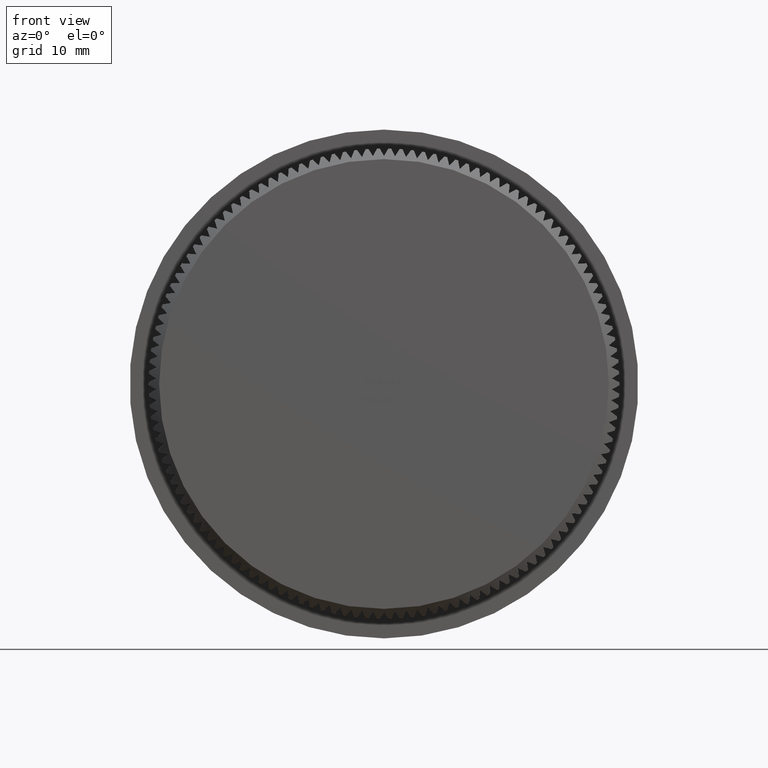
[diagram: clean part render]
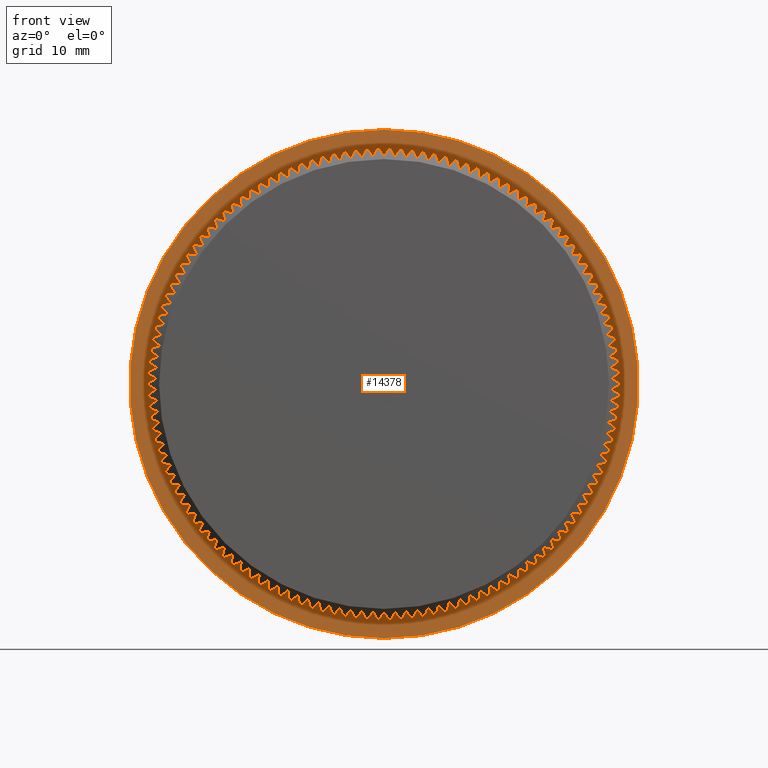
[diagram: same view with one face highlighted and labeled with its STEP entity id]
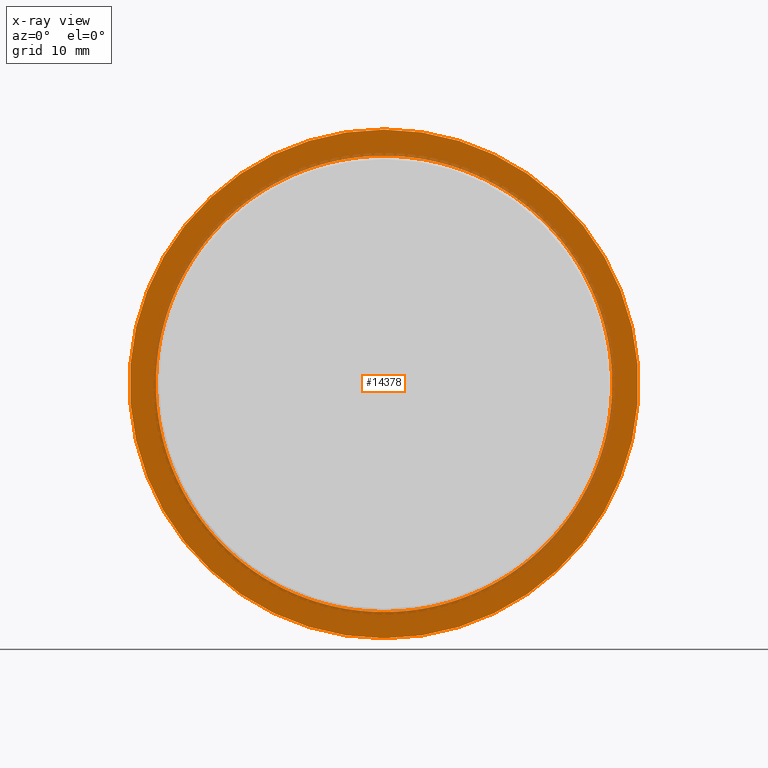
[diagram: x-ray of the same camera — body ghosted, the highlighted face saturated]
A machine part, front view. The second image highlights one B-rep face of the part: STEP entity #14378.
The next image is the same camera in x-ray: the body ghosted, the highlighted face saturated — about 9% of this face is hidden behind the body in this view.
In plain terms, the highlighted planar face has unit normal (0, -1, -0).
Its self-contained STEP definition (entity closure, byte-faithful):
#14 = CARTESIAN_POINT ( 'NONE',  ( 0.0000000000000000000, 8.000000000000001800, 0.0000000000000000000 ) ) ;
#16 = AXIS2_PLACEMENT_3D ( 'NONE', #23679, #16557, #16747 ) ;
#67 = EDGE_CURVE ( 'NONE', #26268, #14813, #12411, .T. ) ;
#105 = AXIS2_PLACEMENT_3D ( 'NONE', #14890, #24543, #10338 ) ;
#115 = EDGE_CURVE ( 'NONE', #11371, #17022, #14235, .T. ) ;
#179 = DIRECTION ( 'NONE',  ( 0.0000000000000000000, 0.0000000000000000000, -1.000000000000000000 ) ) ;
#188 = DIRECTION ( 'NONE',  ( -0.0000000000000000000, -1.000000000000000000, -0.0000000000000000000 ) ) ;
#219 = DIRECTION ( 'NONE',  ( 0.0000000000000000000, 0.0000000000000000000, -1.000000000000000000 ) ) ;
#256 = AXIS2_PLACEMENT_3D ( 'NONE', #580, #19196, #9878 ) ;
#273 = VERTEX_POINT ( 'NONE', #26675 ) ;
#276 = VERTEX_POINT ( 'NONE', #1234 ) ;
#290 = AXIS2_PLACEMENT_3D ( 'NONE', #25094, #20302, #11079 ) ;
#359 = ORIENTED_EDGE ( 'NONE', *, *, #17590, .F. ) ;
#361 = CARTESIAN_POINT ( 'NONE',  ( 0.0000000000000000000, 8.000000000000001800, 0.0000000000000000000 ) ) ;
#366 = DIRECTION ( 'NONE',  ( -0.0000000000000000000, -1.000000000000000000, -0.0000000000000000000 ) ) ;
#411 = VERTEX_POINT ( 'NONE', #6260 ) ;
#420 = CARTESIAN_POINT ( 'NONE',  ( 0.0000000000000000000, 8.000000000000001800, 0.0000000000000000000 ) ) ;
#421 = DIRECTION ( 'NONE',  ( -0.0000000000000000000, -1.000000000000000000, -0.0000000000000000000 ) ) ;
#422 = DIRECTION ( 'NONE',  ( -0.0000000000000000000, -1.000000000000000000, -0.0000000000000000000 ) ) ;
#424 = CARTESIAN_POINT ( 'NONE',  ( -19.40764319245201000, 8.000000000000000000, 9.595096962223527400 ) ) ;
#484 = CARTESIAN_POINT ( 'NONE',  ( 0.0000000000000000000, 8.000000000000001800, 0.0000000000000000000 ) ) ;
#505 = ORIENTED_EDGE ( 'NONE', *, *, #23480, .F. ) ;
#564 = EDGE_CURVE ( 'NONE', #19405, #17554, #27695, .T. ) ;
#580 = CARTESIAN_POINT ( 'NONE',  ( 0.0000000000000000000, 8.000000000000001800, 0.0000000000000000000 ) ) ;
#629 = CARTESIAN_POINT ( 'NONE',  ( -21.64367850483618100, 7.999999999999996400, 0.5231450843621899800 ) ) ;
#640 = VERTEX_POINT ( 'NONE', #16977 ) ;
#752 = DIRECTION ( 'NONE',  ( -0.0000000000000000000, -1.000000000000000000, -0.0000000000000000000 ) ) ;
#814 = ORIENTED_EDGE ( 'NONE', *, *, #10666, .F. ) ;
#835 = CARTESIAN_POINT ( 'NONE',  ( -15.12277105763951300, 8.000000000000000000, 15.49271750011019800 ) ) ;
#877 = ORIENTED_EDGE ( 'NONE', *, *, #26542, .F. ) ;
#888 = ORIENTED_EDGE ( 'NONE', *, *, #11976, .F. ) ;
#890 = CIRCLE ( 'NONE', #22521, 21.65000000000000200 ) ;
#924 = DIRECTION ( 'NONE',  ( -0.0000000000000000000, -1.000000000000000000, -0.0000000000000000000 ) ) ;
#928 = DIRECTION ( 'NONE',  ( 0.0000000000000000000, 0.0000000000000000000, -1.000000000000000000 ) ) ;
#995 = CIRCLE ( 'NONE', #29717, 21.65000000000000200 ) ;
#1064 = CIRCLE ( 'NONE', #3047, 21.65000000000000200 ) ;
#1075 = ORIENTED_EDGE ( 'NONE', *, *, #21674, .F. ) ;
#1100 = CIRCLE ( 'NONE', #8532, 21.65000000000000200 ) ;
#1121 = AXIS2_PLACEMENT_3D ( 'NONE', #16193, #2158, #11981 ) ;
#1134 = AXIS2_PLACEMENT_3D ( 'NONE', #1339, #28825, #3617 ) ;
#1212 = EDGE_CURVE ( 'NONE', #276, #13190, #4774, .T. ) ;
#1225 = DIRECTION ( 'NONE',  ( -0.0000000000000000000, -1.000000000000000000, -0.0000000000000000000 ) ) ;
#1234 = CARTESIAN_POINT ( 'NONE',  ( 7.185805020232804100, 8.000000000000000000, -20.42270075703008200 ) ) ;
#1274 = EDGE_CURVE ( 'NONE', #23400, #25966, #7635, .T. ) ;
#1279 = DIRECTION ( 'NONE',  ( -0.0000000000000000000, -1.000000000000000000, -0.0000000000000000000 ) ) ;
#1319 = CARTESIAN_POINT ( 'NONE',  ( -3.128187923173501300, 7.999999999999983100, -21.42281354811528600 ) ) ;
#1339 = CARTESIAN_POINT ( 'NONE',  ( 0.0000000000000000000, 8.000000000000001800, 0.0000000000000000000 ) ) ;
#1356 = CARTESIAN_POINT ( 'NONE',  ( 0.0000000000000000000, 8.000000000000001800, 0.0000000000000000000 ) ) ;
#1382 = CARTESIAN_POINT ( 'NONE',  ( -4.159543430707650200, 8.000000000000003600, -21.24666323091833000 ) ) ;
#1393 = CIRCLE ( 'NONE', #15399, 21.65000000000000200 ) ;
#1431 = VERTEX_POINT ( 'NONE', #26909 ) ;
#1444 = DIRECTION ( 'NONE',  ( 0.0000000000000000000, 0.0000000000000000000, -1.000000000000000000 ) ) ;
#1528 = DIRECTION ( 'NONE',  ( -0.0000000000000000000, -1.000000000000000000, -0.0000000000000000000 ) ) ;
#1530 = CIRCLE ( 'NONE', #25629, 21.65000000000000200 ) ;
#1534 = DIRECTION ( 'NONE',  ( -0.0000000000000000000, -1.000000000000000000, -0.0000000000000000000 ) ) ;
#1538 = DIRECTION ( 'NONE',  ( -0.0000000000000000000, -1.000000000000000000, -0.0000000000000000000 ) ) ;
#1573 = CARTESIAN_POINT ( 'NONE',  ( 20.88955572988783200, 7.999999999999989300, 5.687614737999642700 ) ) ;
#1581 = CIRCLE ( 'NONE', #23439, 21.65000000000000200 ) ;
#1623 = DIRECTION ( 'NONE',  ( -0.0000000000000000000, -1.000000000000000000, -0.0000000000000000000 ) ) ;
#1635 = EDGE_CURVE ( 'NONE', #13902, #411, #13067, .T. ) ;
#1647 = DIRECTION ( 'NONE',  ( -0.0000000000000000000, -1.000000000000000000, -0.0000000000000000000 ) ) ;
#1743 = CIRCLE ( 'NONE', #12706, 21.65000000000000200 ) ;
#1757 = CIRCLE ( 'NONE', #16698, 21.65000000000000200 ) ;
#1761 = CIRCLE ( 'NONE', #24668, 21.65000000000000200 ) ;
#1780 = EDGE_CURVE ( 'NONE', #15990, #12446, #25115, .T. ) ;
#1782 = AXIS2_PLACEMENT_3D ( 'NONE', #2101, #13690, #22545 ) ;
#1866 = CARTESIAN_POINT ( 'NONE',  ( 0.0000000000000000000, 8.000000000000001800, 0.0000000000000000000 ) ) ;
#1869 = EDGE_CURVE ( 'NONE', #6539, #12071, #22534, .T. ) ;
#1915 = EDGE_CURVE ( 'NONE', #10205, #24893, #10919, .T. ) ;
#1924 = CIRCLE ( 'NONE', #6348, 21.65000000000000200 ) ;
#1968 = DIRECTION ( 'NONE',  ( 0.0000000000000000000, 0.0000000000000000000, -1.000000000000000000 ) ) ;
#1994 = AXIS2_PLACEMENT_3D ( 'NONE', #12938, #13140, #17922 ) ;
#1995 = CARTESIAN_POINT ( 'NONE',  ( 0.0000000000000000000, 8.000000000000001800, 0.0000000000000000000 ) ) ;
#1997 = CARTESIAN_POINT ( 'NONE',  ( 0.0000000000000000000, 8.000000000000001800, 0.0000000000000000000 ) ) ;
#2002 = EDGE_CURVE ( 'NONE', #29023, #6082, #22898, .T. ) ;
#2005 = CARTESIAN_POINT ( 'NONE',  ( -13.55690952670451700, 7.999999999999996400, 16.87994976546874800 ) ) ;
#2041 = EDGE_CURVE ( 'NONE', #11868, #273, #25822, .T. ) ;
#2057 = CARTESIAN_POINT ( 'NONE',  ( 10.06125667474734800, 7.999999999999996400, 19.17012295539212400 ) ) ;
#2079 = CIRCLE ( 'NONE', #15146, 21.65000000000000200 ) ;
#2093 = ORIENTED_EDGE ( 'NONE', *, *, #6219, .F. ) ;
#2101 = CARTESIAN_POINT ( 'NONE',  ( 0.0000000000000000000, 8.000000000000001800, 0.0000000000000000000 ) ) ;
#2127 = EDGE_CURVE ( 'NONE', #5800, #11839, #25089, .T. ) ;
#2158 = DIRECTION ( 'NONE',  ( -0.0000000000000000000, -1.000000000000000000, -0.0000000000000000000 ) ) ;
#2189 = CARTESIAN_POINT ( 'NONE',  ( 0.0000000000000000000, 8.000000000000001800, 0.0000000000000000000 ) ) ;
#2215 = AXIS2_PLACEMENT_3D ( 'NONE', #1356, #17649, #20074 ) ;
#2269 = CARTESIAN_POINT ( 'NONE',  ( 14.35660555091302500, 7.999999999999996400, 16.20525769790451400 ) ) ;
#2282 = DIRECTION ( 'NONE',  ( -0.0000000000000000000, -1.000000000000000000, -0.0000000000000000000 ) ) ;
#2303 = CARTESIAN_POINT ( 'NONE',  ( 0.0000000000000000000, 8.000000000000001800, 0.0000000000000000000 ) ) ;
#2334 = DIRECTION ( 'NONE',  ( 0.0000000000000000000, 0.0000000000000000000, -1.000000000000000000 ) ) ;
#2344 = CIRCLE ( 'NONE', #17674, 21.65000000000000200 ) ;
#2362 = CARTESIAN_POINT ( 'NONE',  ( 0.0000000000000000000, 8.000000000000001800, 0.0000000000000000000 ) ) ;
#2393 = AXIS2_PLACEMENT_3D ( 'NONE', #13633, #27465, #11309 ) ;
#2489 = CARTESIAN_POINT ( 'NONE',  ( 20.59037357779000000, 7.999999999999996400, 6.690217928217846200 ) ) ;
#2503 = VERTEX_POINT ( 'NONE', #11116 ) ;
#2517 = ORIENTED_EDGE ( 'NONE', *, *, #25715, .F. ) ;
#2555 = DIRECTION ( 'NONE',  ( 0.0000000000000000000, 0.0000000000000000000, -1.000000000000000000 ) ) ;
#2570 = DIRECTION ( 'NONE',  ( -0.0000000000000000000, -1.000000000000000000, -0.0000000000000000000 ) ) ;
#2658 = CARTESIAN_POINT ( 'NONE',  ( 0.0000000000000000000, 8.000000000000001800, 0.0000000000000000000 ) ) ;
#2665 = AXIS2_PLACEMENT_3D ( 'NONE', #1866, #29531, #22604 ) ;
#2694 = CARTESIAN_POINT ( 'NONE',  ( 0.0000000000000000000, 8.000000000000001800, 0.0000000000000000000 ) ) ;
#2719 = CARTESIAN_POINT ( 'NONE',  ( 0.0000000000000000000, 8.000000000000001800, 0.0000000000000000000 ) ) ;
#2720 = AXIS2_PLACEMENT_3D ( 'NONE', #2658, #11809, #2555 ) ;
#2746 = ORIENTED_EDGE ( 'NONE', *, *, #26360, .F. ) ;
#2865 = AXIS2_PLACEMENT_3D ( 'NONE', #20688, #23137, #27796 ) ;
#2889 = CARTESIAN_POINT ( 'NONE',  ( 0.0000000000000000000, 8.000000000000001800, 0.0000000000000000000 ) ) ;
#2914 = CARTESIAN_POINT ( 'NONE',  ( 13.55690952670429200, 7.999999999999983100, 16.87994976546893600 ) ) ;
#2933 = ORIENTED_EDGE ( 'NONE', *, *, #21585, .F. ) ;
#2938 = DIRECTION ( 'NONE',  ( 0.0000000000000000000, 0.0000000000000000000, -1.000000000000000000 ) ) ;
#2940 = DIRECTION ( 'NONE',  ( -0.0000000000000000000, -1.000000000000000000, -0.0000000000000000000 ) ) ;
#2958 = CARTESIAN_POINT ( 'NONE',  ( 0.0000000000000000000, 8.000000000000001800, 0.0000000000000000000 ) ) ;
#2962 = CARTESIAN_POINT ( 'NONE',  ( 0.0000000000000000000, 8.000000000000001800, 0.0000000000000000000 ) ) ;
#2973 = CARTESIAN_POINT ( 'NONE',  ( 18.39098079538079500, 8.000000000000000000, 11.42341128489799700 ) ) ;
#3034 = AXIS2_PLACEMENT_3D ( 'NONE', #23991, #3149, #21735 ) ;
#3047 = AXIS2_PLACEMENT_3D ( 'NONE', #10159, #12547, #19571 ) ;
#3090 = EDGE_CURVE ( 'NONE', #4212, #7615, #1757, .T. ) ;
#3091 = DIRECTION ( 'NONE',  ( 0.0000000000000000000, 0.0000000000000000000, -1.000000000000000000 ) ) ;
#3105 = VERTEX_POINT ( 'NONE', #5968 ) ;
#3149 = DIRECTION ( 'NONE',  ( -0.0000000000000000000, -1.000000000000000000, -0.0000000000000000000 ) ) ;
#3166 = EDGE_CURVE ( 'NONE', #5455, #25226, #26499, .T. ) ;
#3169 = EDGE_CURVE ( 'NONE', #14813, #27786, #4701, .T. ) ;
#3248 = ORIENTED_EDGE ( 'NONE', *, *, #21149, .F. ) ;
#3251 = CARTESIAN_POINT ( 'NONE',  ( 17.20260676580262100, 7.999999999999996400, 13.14506829427531000 ) ) ;
#3252 = CARTESIAN_POINT ( 'NONE',  ( 3.128187923173351600, 7.999999999999986700, 21.42281354811530400 ) ) ;
#3291 = CARTESIAN_POINT ( 'NONE',  ( 0.0000000000000000000, 8.000000000000001800, 0.0000000000000000000 ) ) ;
#3297 = CARTESIAN_POINT ( 'NONE',  ( -7.185805020232655800, 8.000000000000000000, 20.42270075703013500 ) ) ;
#3305 = DIRECTION ( 'NONE',  ( 0.0000000000000000000, 0.0000000000000000000, -1.000000000000000000 ) ) ;
#3364 = VERTEX_POINT ( 'NONE', #13652 ) ;
#3387 = CARTESIAN_POINT ( 'NONE',  ( 0.0000000000000000000, 8.000000000000001800, 0.0000000000000000000 ) ) ;
#3411 = DIRECTION ( 'NONE',  ( 0.0000000000000000000, 0.0000000000000000000, -1.000000000000000000 ) ) ;
#3500 = VERTEX_POINT ( 'NONE', #10209 ) ;
#3501 = ORIENTED_EDGE ( 'NONE', *, *, #13764, .F. ) ;
#3504 = CARTESIAN_POINT ( 'NONE',  ( -20.59037357779005000, 7.999999999999996400, -6.690217928217697900 ) ) ;
#3524 = AXIS2_PLACEMENT_3D ( 'NONE', #2694, #25988, #14396 ) ;
#3549 = CARTESIAN_POINT ( 'NONE',  ( -10.97568083506425500, 8.000000000000000000, 18.66164328795305500 ) ) ;
#3592 = CARTESIAN_POINT ( 'NONE',  ( 0.0000000000000000000, 8.000000000000001800, 0.0000000000000000000 ) ) ;
#3617 = DIRECTION ( 'NONE',  ( 0.0000000000000000000, 0.0000000000000000000, -1.000000000000000000 ) ) ;
#3619 = AXIS2_PLACEMENT_3D ( 'NONE', #2958, #9974, #14628 ) ;
#3623 = AXIS2_PLACEMENT_3D ( 'NONE', #8924, #22528, #22418 ) ;
#3690 = VERTEX_POINT ( 'NONE', #13614 ) ;
#3694 = CARTESIAN_POINT ( 'NONE',  ( 0.0000000000000000000, 8.000000000000001800, 0.0000000000000000000 ) ) ;
#3706 = AXIS2_PLACEMENT_3D ( 'NONE', #2303, #25705, #20914 ) ;
#3711 = CARTESIAN_POINT ( 'NONE',  ( 0.0000000000000000000, 8.000000000000001800, 0.0000000000000000000 ) ) ;
#3720 = VERTEX_POINT ( 'NONE', #27243 ) ;
#3726 = ORIENTED_EDGE ( 'NONE', *, *, #26573, .F. ) ;
#3738 = AXIS2_PLACEMENT_3D ( 'NONE', #18429, #20779, #4541 ) ;
#3747 = EDGE_CURVE ( 'NONE', #16254, #10352, #27194, .T. ) ;
#3777 = DIRECTION ( 'NONE',  ( 0.0000000000000000000, 0.0000000000000000000, -1.000000000000000000 ) ) ;
#3797 = CARTESIAN_POINT ( 'NONE',  ( 0.0000000000000000000, 8.000000000000001800, 0.0000000000000000000 ) ) ;
#3905 = DIRECTION ( 'NONE',  ( -0.0000000000000000000, -1.000000000000000000, -0.0000000000000000000 ) ) ;
#3929 = AXIS2_PLACEMENT_3D ( 'NONE', #28494, #14574, #16898 ) ;
#3980 = DIRECTION ( 'NONE',  ( -0.0000000000000000000, -1.000000000000000000, -0.0000000000000000000 ) ) ;
#4006 = DIRECTION ( 'NONE',  ( -0.0000000000000000000, -1.000000000000000000, -0.0000000000000000000 ) ) ;
#4015 = CARTESIAN_POINT ( 'NONE',  ( 18.92140790636420900, 8.000000000000000000, -10.52154089670225200 ) ) ;
#4022 = DIRECTION ( 'NONE',  ( -0.0000000000000000000, -1.000000000000000000, -0.0000000000000000000 ) ) ;
#4079 = CARTESIAN_POINT ( 'NONE',  ( 0.0000000000000000000, 8.000000000000001800, 0.0000000000000000000 ) ) ;
#4099 = AXIS2_PLACEMENT_3D ( 'NONE', #14430, #19082, #5198 ) ;
#4169 = CIRCLE ( 'NONE', #3929, 21.65000000000000200 ) ;
#4178 = ORIENTED_EDGE ( 'NONE', *, *, #24497, .F. ) ;
#4212 = VERTEX_POINT ( 'NONE', #21704 ) ;
#4217 = DIRECTION ( 'NONE',  ( -0.0000000000000000000, -1.000000000000000000, -0.0000000000000000000 ) ) ;
#4278 = EDGE_CURVE ( 'NONE', #18973, #7753, #12970, .T. ) ;
#4288 = EDGE_CURVE ( 'NONE', #12915, #14153, #5749, .T. ) ;
#4330 = AXIS2_PLACEMENT_3D ( 'NONE', #27286, #27192, #18133 ) ;
#4357 = DIRECTION ( 'NONE',  ( -0.0000000000000000000, -1.000000000000000000, -0.0000000000000000000 ) ) ;
#4359 = DIRECTION ( 'NONE',  ( -0.0000000000000000000, -1.000000000000000000, -0.0000000000000000000 ) ) ;
#4431 = CARTESIAN_POINT ( 'NONE',  ( 0.0000000000000000000, 8.000000000000001800, 0.0000000000000000000 ) ) ;
#4463 = ORIENTED_EDGE ( 'NONE', *, *, #5505, .F. ) ;
#4493 = CARTESIAN_POINT ( 'NONE',  ( 0.0000000000000000000, 8.000000000000001800, 0.0000000000000000000 ) ) ;
#4537 = CARTESIAN_POINT ( 'NONE',  ( 18.92140790636399600, 7.999999999999983100, 10.52154089670265200 ) ) ;
#4541 = DIRECTION ( 'NONE',  ( 0.0000000000000000000, 0.0000000000000000000, -1.000000000000000000 ) ) ;
#4647 = CARTESIAN_POINT ( 'NONE',  ( 19.84855102860409200, 7.999999999999992900, -8.646243234197124000 ) ) ;
#4650 = ORIENTED_EDGE ( 'NONE', *, *, #3090, .F. ) ;
#4655 = DIRECTION ( 'NONE',  ( -0.0000000000000000000, -1.000000000000000000, -0.0000000000000000000 ) ) ;
#4692 = CARTESIAN_POINT ( 'NONE',  ( 0.0000000000000000000, 8.000000000000001800, 0.0000000000000000000 ) ) ;
#4701 = CIRCLE ( 'NONE', #2665, 21.65000000000000200 ) ;
#4730 = CARTESIAN_POINT ( 'NONE',  ( 0.0000000000000000000, 8.000000000000001800, 0.0000000000000000000 ) ) ;
#4753 = DIRECTION ( 'NONE',  ( 0.0000000000000000000, 0.0000000000000000000, -1.000000000000000000 ) ) ;
#4768 = CIRCLE ( 'NONE', #6733, 21.65000000000000200 ) ;
#4774 = CIRCLE ( 'NONE', #18014, 21.65000000000000200 ) ;
#4822 = DIRECTION ( 'NONE',  ( 0.0000000000000000000, 0.0000000000000000000, -1.000000000000000000 ) ) ;
#4835 = AXIS2_PLACEMENT_3D ( 'NONE', #26501, #5485, #17453 ) ;
#4837 = DIRECTION ( 'NONE',  ( -0.0000000000000000000, -1.000000000000000000, -0.0000000000000000000 ) ) ;
#4876 = VERTEX_POINT ( 'NONE', #7678 ) ;
#4891 = CARTESIAN_POINT ( 'NONE',  ( 0.0000000000000000000, 8.000000000000001800, 0.0000000000000000000 ) ) ;
#4893 = AXIS2_PLACEMENT_3D ( 'NONE', #26202, #12244, #12433 ) ;
#4971 = EDGE_CURVE ( 'NONE', #24893, #8970, #22051, .T. ) ;
#4993 = CIRCLE ( 'NONE', #27378, 21.65000000000000200 ) ;
#4999 = CARTESIAN_POINT ( 'NONE',  ( 0.0000000000000000000, 8.000000000000001800, 0.0000000000000000000 ) ) ;
#5013 = AXIS2_PLACEMENT_3D ( 'NONE', #21897, #10542, #3411 ) ;
#5119 = EDGE_CURVE ( 'NONE', #23596, #12236, #19506, .T. ) ;
#5198 = DIRECTION ( 'NONE',  ( 0.0000000000000000000, 0.0000000000000000000, -1.000000000000000000 ) ) ;
#5202 = EDGE_CURVE ( 'NONE', #3105, #22133, #21341, .T. ) ;
#5251 = EDGE_CURVE ( 'NONE', #7334, #9617, #15153, .T. ) ;
#5261 = DIRECTION ( 'NONE',  ( 0.0000000000000000000, 0.0000000000000000000, -1.000000000000000000 ) ) ;
#5301 = DIRECTION ( 'NONE',  ( 0.0000000000000000000, 0.0000000000000000000, -1.000000000000000000 ) ) ;
#5333 = AXIS2_PLACEMENT_3D ( 'NONE', #14, #11728, #20978 ) ;
#5379 = CARTESIAN_POINT ( 'NONE',  ( 0.0000000000000000000, 8.000000000000001800, 0.0000000000000000000 ) ) ;
#5391 = VERTEX_POINT ( 'NONE', #13279 ) ;
#5393 = DIRECTION ( 'NONE',  ( -0.0000000000000000000, -1.000000000000000000, -0.0000000000000000000 ) ) ;
#5424 = EDGE_CURVE ( 'NONE', #24034, #27846, #23161, .T. ) ;
#5438 = DIRECTION ( 'NONE',  ( 0.0000000000000000000, 0.0000000000000000000, -1.000000000000000000 ) ) ;
#5455 = VERTEX_POINT ( 'NONE', #24571 ) ;
#5473 = CIRCLE ( 'NONE', #22616, 21.65000000000000200 ) ;
#5476 = ORIENTED_EDGE ( 'NONE', *, *, #22430, .F. ) ;
#5485 = DIRECTION ( 'NONE',  ( 0.0000000000000000000, -1.000000000000000000, -0.0000000000000000000 ) ) ;
#5505 = EDGE_CURVE ( 'NONE', #19102, #18973, #23512, .T. ) ;
#5521 = CIRCLE ( 'NONE', #7495, 21.65000000000000200 ) ;
#5546 = VERTEX_POINT ( 'NONE', #2489 ) ;
#5646 = CIRCLE ( 'NONE', #20293, 21.65000000000000200 ) ;
#5676 = CARTESIAN_POINT ( 'NONE',  ( -11.86447078422850200, 7.999999999999992900, -18.10957848792148200 ) ) ;
#5683 = VERTEX_POINT ( 'NONE', #835 ) ;
#5715 = AXIS2_PLACEMENT_3D ( 'NONE', #14645, #25848, #21458 ) ;
#5749 = CIRCLE ( 'NONE', #18063, 21.65000000000000200 ) ;
#5777 = DIRECTION ( 'NONE',  ( -0.0000000000000000000, -1.000000000000000000, -0.0000000000000000000 ) ) ;
#5800 = VERTEX_POINT ( 'NONE', #10328 ) ;
#5806 = CARTESIAN_POINT ( 'NONE',  ( 20.88955572988794500, 8.000000000000003600, -5.687614737999203900 ) ) ;
#5847 = CARTESIAN_POINT ( 'NONE',  ( 0.0000000000000000000, 8.000000000000001800, 0.0000000000000000000 ) ) ;
#5954 = VERTEX_POINT ( 'NONE', #16447 ) ;
#5968 = CARTESIAN_POINT ( 'NONE',  ( 15.85361663184162500, 8.000000000000003600, 14.74399334273434500 ) ) ;
#5979 = VERTEX_POINT ( 'NONE', #14104 ) ;
#5990 = CIRCLE ( 'NONE', #28459, 21.65000000000000200 ) ;
#6002 = EDGE_CURVE ( 'NONE', #16385, #11865, #14749, .T. ) ;
#6008 = CARTESIAN_POINT ( 'NONE',  ( 0.0000000000000000000, 8.000000000000001800, 0.0000000000000000000 ) ) ;
#6068 = DIRECTION ( 'NONE',  ( 0.0000000000000000000, 0.0000000000000000000, -1.000000000000000000 ) ) ;
#6076 = AXIS2_PLACEMENT_3D ( 'NONE', #3694, #10629, #17903 ) ;
#6081 = CARTESIAN_POINT ( 'NONE',  ( 2.089526387799408800, 7.999999999999992900, -21.54892989163708000 ) ) ;
#6082 = VERTEX_POINT ( 'NONE', #23868 ) ;
#6091 = ORIENTED_EDGE ( 'NONE', *, *, #7176, .F. ) ;
#6104 = DIRECTION ( 'NONE',  ( -0.0000000000000000000, -1.000000000000000000, -0.0000000000000000000 ) ) ;
#6151 = ORIENTED_EDGE ( 'NONE', *, *, #27249, .F. ) ;
#6155 = ORIENTED_EDGE ( 'NONE', *, *, #7281, .F. ) ;
#6176 = ORIENTED_EDGE ( 'NONE', *, *, #1274, .F. ) ;
#6219 = EDGE_CURVE ( 'NONE', #28186, #10205, #19112, .T. ) ;
#6255 = CARTESIAN_POINT ( 'NONE',  ( 20.24310165413914600, 8.000000000000000000, 7.677195804471129900 ) ) ;
#6260 = CARTESIAN_POINT ( 'NONE',  ( -21.34096965217025900, 7.999999999999983100, 3.644929945163321200 ) ) ;
#6282 = ORIENTED_EDGE ( 'NONE', *, *, #15507, .F. ) ;
#6310 = ORIENTED_EDGE ( 'NONE', *, *, #6779, .F. ) ;
#6348 = AXIS2_PLACEMENT_3D ( 'NONE', #24126, #26468, #10123 ) ;
#6364 = CARTESIAN_POINT ( 'NONE',  ( 19.40764319245207800, 7.999999999999996400, -9.595096962223397700 ) ) ;
#6400 = DIRECTION ( 'NONE',  ( -0.0000000000000000000, -1.000000000000000000, -0.0000000000000000000 ) ) ;
#6415 = CARTESIAN_POINT ( 'NONE',  ( 0.0000000000000000000, 8.000000000000001800, 0.0000000000000000000 ) ) ;
#6447 = DIRECTION ( 'NONE',  ( -0.0000000000000000000, -1.000000000000000000, -0.0000000000000000000 ) ) ;
#6448 = CARTESIAN_POINT ( 'NONE',  ( 0.0000000000000000000, 8.000000000000001800, 0.0000000000000000000 ) ) ;
#6514 = EDGE_CURVE ( 'NONE', #9617, #10436, #15126, .T. ) ;
#6518 = DIRECTION ( 'NONE',  ( -0.0000000000000000000, -1.000000000000000000, -0.0000000000000000000 ) ) ;
#6539 = VERTEX_POINT ( 'NONE', #14169 ) ;
#6574 = ORIENTED_EDGE ( 'NONE', *, *, #14750, .F. ) ;
#6617 = VERTEX_POINT ( 'NONE', #1319 ) ;
#6648 = CARTESIAN_POINT ( 'NONE',  ( -19.84855102860397100, 8.000000000000000000, -8.646243234197397600 ) ) ;
#6669 = VERTEX_POINT ( 'NONE', #18000 ) ;
#6676 = ORIENTED_EDGE ( 'NONE', *, *, #5119, .F. ) ;
#6682 = ORIENTED_EDGE ( 'NONE', *, *, #22855, .F. ) ;
#6733 = AXIS2_PLACEMENT_3D ( 'NONE', #17956, #8611, #9455 ) ;
#6775 = AXIS2_PLACEMENT_3D ( 'NONE', #6415, #1623, #15760 ) ;
#6777 = CARTESIAN_POINT ( 'NONE',  ( 0.0000000000000000000, 8.000000000000001800, 0.0000000000000000000 ) ) ;
#6779 = EDGE_CURVE ( 'NONE', #29441, #9592, #26734, .T. ) ;
#6797 = VERTEX_POINT ( 'NONE', #16076 ) ;
#6854 = AXIS2_PLACEMENT_3D ( 'NONE', #14380, #421, #14282 ) ;
#6899 = ORIENTED_EDGE ( 'NONE', *, *, #17137, .F. ) ;
#6915 = AXIS2_PLACEMENT_3D ( 'NONE', #420, #14281, #7066 ) ;
#6970 = DIRECTION ( 'NONE',  ( 0.0000000000000000000, 0.0000000000000000000, -1.000000000000000000 ) ) ;
#7023 = CARTESIAN_POINT ( 'NONE',  ( 0.0000000000000000000, 8.000000000000001800, 0.0000000000000000000 ) ) ;
#7066 = DIRECTION ( 'NONE',  ( 0.0000000000000000000, 0.0000000000000000000, -1.000000000000000000 ) ) ;
#7093 = DIRECTION ( 'NONE',  ( 0.0000000000000000000, 0.0000000000000000000, -1.000000000000000000 ) ) ;
#7119 = DIRECTION ( 'NONE',  ( -0.0000000000000000000, -1.000000000000000000, -0.0000000000000000000 ) ) ;
#7120 = DIRECTION ( 'NONE',  ( 0.0000000000000000000, 0.0000000000000000000, -1.000000000000000000 ) ) ;
#7139 = EDGE_CURVE ( 'NONE', #14711, #9571, #19812, .T. ) ;
#7173 = CARTESIAN_POINT ( 'NONE',  ( 0.0000000000000000000, 8.000000000000001800, 0.0000000000000000000 ) ) ;
#7176 = EDGE_CURVE ( 'NONE', #640, #23090, #10391, .T. ) ;
#7178 = AXIS2_PLACEMENT_3D ( 'NONE', #1995, #4357, #22950 ) ;
#7217 = VERTEX_POINT ( 'NONE', #9517 ) ;
#7277 = ORIENTED_EDGE ( 'NONE', *, *, #24269, .F. ) ;
#7281 = EDGE_CURVE ( 'NONE', #25981, #276, #5990, .T. ) ;
#7283 = ORIENTED_EDGE ( 'NONE', *, *, #12100, .F. ) ;
#7334 = VERTEX_POINT ( 'NONE', #19524 ) ;
#7361 = EDGE_CURVE ( 'NONE', #20847, #20648, #4169, .T. ) ;
#7363 = AXIS2_PLACEMENT_3D ( 'NONE', #27769, #20862, #27875 ) ;
#7369 = ORIENTED_EDGE ( 'NONE', *, *, #26628, .F. ) ;
#7406 = AXIS2_PLACEMENT_3D ( 'NONE', #15383, #6447, #18011 ) ;
#7495 = AXIS2_PLACEMENT_3D ( 'NONE', #2889, #26161, #5438 ) ;
#7519 = DIRECTION ( 'NONE',  ( 0.0000000000000000000, 0.0000000000000000000, -1.000000000000000000 ) ) ;
#7589 = ORIENTED_EDGE ( 'NONE', *, *, #24757, .F. ) ;
#7615 = VERTEX_POINT ( 'NONE', #27650 ) ;
#7635 = CIRCLE ( 'NONE', #3034, 21.65000000000000200 ) ;
#7647 = ORIENTED_EDGE ( 'NONE', *, *, #29068, .F. ) ;
#7673 = ORIENTED_EDGE ( 'NONE', *, *, #19310, .F. ) ;
#7678 = CARTESIAN_POINT ( 'NONE',  ( 15.12277105763962300, 7.999999999999996400, -15.49271750011009100 ) ) ;
#7701 = DIRECTION ( 'NONE',  ( 0.0000000000000000000, 0.0000000000000000000, -1.000000000000000000 ) ) ;
#7704 = EDGE_CURVE ( 'NONE', #27846, #19491, #15801, .T. ) ;
#7705 = AXIS2_PLACEMENT_3D ( 'NONE', #27131, #8628, #24904 ) ;
#7713 = EDGE_CURVE ( 'NONE', #17888, #17939, #30022, .T. ) ;
#7722 = CIRCLE ( 'NONE', #1121, 21.65000000000000200 ) ;
#7736 = VERTEX_POINT ( 'NONE', #13077 ) ;
#7753 = VERTEX_POINT ( 'NONE', #1382 ) ;
#7765 = CARTESIAN_POINT ( 'NONE',  ( -17.81760069659769000, 8.000000000000000000, 12.29860176672948700 ) ) ;
#7774 = CIRCLE ( 'NONE', #8403, 21.65000000000000200 ) ;
#7810 = CARTESIAN_POINT ( 'NONE',  ( 7.185805020232377800, 7.999999999999983100, 20.42270075703023800 ) ) ;
#7825 = CIRCLE ( 'NONE', #13750, 21.65000000000000200 ) ;
#7852 = CARTESIAN_POINT ( 'NONE',  ( 0.0000000000000000000, 8.000000000000001800, 0.0000000000000000000 ) ) ;
#7855 = CARTESIAN_POINT ( 'NONE',  ( 0.0000000000000000000, 8.000000000000001800, 0.0000000000000000000 ) ) ;
#7879 = EDGE_CURVE ( 'NONE', #11839, #11840, #16900, .T. ) ;
#7880 = AXIS2_PLACEMENT_3D ( 'NONE', #7852, #19516, #3777 ) ;
#7926 = CIRCLE ( 'NONE', #15727, 21.65000000000000200 ) ;
#8012 = VERTEX_POINT ( 'NONE', #9754 ) ;
#8015 = EDGE_CURVE ( 'NONE', #9592, #21285, #7774, .T. ) ;
#8051 = DIRECTION ( 'NONE',  ( -0.0000000000000000000, -1.000000000000000000, -0.0000000000000000000 ) ) ;
#8060 = ORIENTED_EDGE ( 'NONE', *, *, #14874, .F. ) ;
#8101 = AXIS2_PLACEMENT_3D ( 'NONE', #18398, #18496, #20550 ) ;
#8116 = ORIENTED_EDGE ( 'NONE', *, *, #18704, .F. ) ;
#8142 = CARTESIAN_POINT ( 'NONE',  ( 11.86447078422838400, 7.999999999999996400, 18.10957848792156000 ) ) ;
#8181 = VERTEX_POINT ( 'NONE', #17445 ) ;
#8186 = CARTESIAN_POINT ( 'NONE',  ( -18.39098079538095800, 8.000000000000000000, 11.42341128489773500 ) ) ;
#8190 = AXIS2_PLACEMENT_3D ( 'NONE', #11523, #9210, #23136 ) ;
#8222 = AXIS2_PLACEMENT_3D ( 'NONE', #12127, #19144, #5261 ) ;
#8301 = VERTEX_POINT ( 'NONE', #10946 ) ;
#8357 = EDGE_CURVE ( 'NONE', #13342, #25696, #24901, .T. ) ;
#8403 = AXIS2_PLACEMENT_3D ( 'NONE', #2719, #23473, #16554 ) ;
#8421 = CARTESIAN_POINT ( 'NONE',  ( -6.190723937331637400, 8.000000000000000000, 20.74602220021344600 ) ) ;
#8451 = AXIS2_PLACEMENT_3D ( 'NONE', #10015, #16991, #3091 ) ;
#8507 = CARTESIAN_POINT ( 'NONE',  ( 0.0000000000000000000, 8.000000000000001800, 0.0000000000000000000 ) ) ;
#8508 = CARTESIAN_POINT ( 'NONE',  ( -4.159543430707796800, 7.999999999999989300, 21.24666323091830500 ) ) ;
#8532 = AXIS2_PLACEMENT_3D ( 'NONE', #2189, #11258, #9126 ) ;
#8589 = AXIS2_PLACEMENT_3D ( 'NONE', #13943, #18399, #23098 ) ;
#8599 = CARTESIAN_POINT ( 'NONE',  ( -16.54743534981764700, 7.999999999999996400, 13.96083390573806300 ) ) ;
#8611 = DIRECTION ( 'NONE',  ( -0.0000000000000000000, -1.000000000000000000, -0.0000000000000000000 ) ) ;
#8615 = ORIENTED_EDGE ( 'NONE', *, *, #5424, .F. ) ;
#8628 = DIRECTION ( 'NONE',  ( -0.0000000000000000000, -1.000000000000000000, -0.0000000000000000000 ) ) ;
#8631 = AXIS2_PLACEMENT_3D ( 'NONE', #1997, #4359, #14101 ) ;
#8633 = EDGE_CURVE ( 'NONE', #13190, #14711, #24168, .T. ) ;
#8652 = ORIENTED_EDGE ( 'NONE', *, *, #17464, .F. ) ;
#8658 = ORIENTED_EDGE ( 'NONE', *, *, #9234, .F. ) ;
#8686 = VERTEX_POINT ( 'NONE', #29979 ) ;
#8717 = DIRECTION ( 'NONE',  ( 0.0000000000000000000, 0.0000000000000000000, -1.000000000000000000 ) ) ;
#8741 = CIRCLE ( 'NONE', #18107, 21.65000000000000200 ) ;
#8752 = CARTESIAN_POINT ( 'NONE',  ( -21.64367850483618100, 7.999999999999986700, -0.5231450843623413100 ) ) ;
#8863 = AXIS2_PLACEMENT_3D ( 'NONE', #25587, #2282, #6970 ) ;
#8922 = AXIS2_PLACEMENT_3D ( 'NONE', #484, #188, #28153 ) ;
#8924 = CARTESIAN_POINT ( 'NONE',  ( 0.0000000000000000000, 8.000000000000001800, 0.0000000000000000000 ) ) ;
#8970 = VERTEX_POINT ( 'NONE', #26391 ) ;
#8986 = VERTEX_POINT ( 'NONE', #24441 ) ;
#9098 = AXIS2_PLACEMENT_3D ( 'NONE', #10930, #22281, #27061 ) ;
#9110 = EDGE_CURVE ( 'NONE', #1431, #16996, #18681, .T. ) ;
#9126 = DIRECTION ( 'NONE',  ( 0.0000000000000000000, 0.0000000000000000000, -1.000000000000000000 ) ) ;
#9130 = CARTESIAN_POINT ( 'NONE',  ( 21.59312869082077000, 8.000000000000000000, 1.568213423502385700 ) ) ;
#9159 = VERTEX_POINT ( 'NONE', #25463 ) ;
#9203 = CIRCLE ( 'NONE', #3623, 21.65000000000000200 ) ;
#9210 = DIRECTION ( 'NONE',  ( -0.0000000000000000000, -1.000000000000000000, -0.0000000000000000000 ) ) ;
#9212 = ORIENTED_EDGE ( 'NONE', *, *, #4278, .F. ) ;
#9230 = AXIS2_PLACEMENT_3D ( 'NONE', #15080, #1225, #928 ) ;
#9234 = EDGE_CURVE ( 'NONE', #5546, #24829, #1581, .T. ) ;
#9247 = DIRECTION ( 'NONE',  ( 0.0000000000000000000, 0.0000000000000000000, -1.000000000000000000 ) ) ;
#9288 = VERTEX_POINT ( 'NONE', #9402 ) ;
#9299 = CIRCLE ( 'NONE', #20573, 21.65000000000000200 ) ;
#9301 = ORIENTED_EDGE ( 'NONE', *, *, #1869, .F. ) ;
#9395 = DIRECTION ( 'NONE',  ( -0.0000000000000000000, -1.000000000000000000, -0.0000000000000000000 ) ) ;
#9402 = CARTESIAN_POINT ( 'NONE',  ( -15.85361663184172300, 7.999999999999996400, -14.74399334273424200 ) ) ;
#9440 = CIRCLE ( 'NONE', #20654, 21.65000000000000200 ) ;
#9442 = CARTESIAN_POINT ( 'NONE',  ( 0.0000000000000000000, 8.000000000000001800, 0.0000000000000000000 ) ) ;
#9455 = DIRECTION ( 'NONE',  ( 0.0000000000000000000, 0.0000000000000000000, -1.000000000000000000 ) ) ;
#9470 = CARTESIAN_POINT ( 'NONE',  ( 21.13994935665378700, 8.000000000000000000, -4.671727860022794900 ) ) ;
#9471 = ORIENTED_EDGE ( 'NONE', *, *, #15582, .F. ) ;
#9509 = CARTESIAN_POINT ( 'NONE',  ( 0.0000000000000000000, 8.000000000000001800, 0.0000000000000000000 ) ) ;
#9517 = CARTESIAN_POINT ( 'NONE',  ( 21.13994935665369100, 8.000000000000000000, 4.671727860023238100 ) ) ;
#9571 = VERTEX_POINT ( 'NONE', #22360 ) ;
#9592 = VERTEX_POINT ( 'NONE', #13310 ) ;
#9601 = VERTEX_POINT ( 'NONE', #29497 ) ;
#9612 = DIRECTION ( 'NONE',  ( 0.0000000000000000000, 0.0000000000000000000, -1.000000000000000000 ) ) ;
#9617 = VERTEX_POINT ( 'NONE', #24706 ) ;
#9647 = AXIS2_PLACEMENT_3D ( 'NONE', #24738, #3905, #27067 ) ;
#9679 = CARTESIAN_POINT ( 'NONE',  ( 0.0000000000000000000, 8.000000000000001800, 0.0000000000000000000 ) ) ;
#9754 = CARTESIAN_POINT ( 'NONE',  ( -20.88955572988790600, 8.000000000000000000, 5.687614737999344200 ) ) ;
#9878 = DIRECTION ( 'NONE',  ( 0.0000000000000000000, 0.0000000000000000000, -1.000000000000000000 ) ) ;
#9962 = CARTESIAN_POINT ( 'NONE',  ( 0.0000000000000000000, 8.000000000000001800, 0.0000000000000000000 ) ) ;
#9974 = DIRECTION ( 'NONE',  ( -0.0000000000000000000, -1.000000000000000000, -0.0000000000000000000 ) ) ;
#10015 = CARTESIAN_POINT ( 'NONE',  ( 0.0000000000000000000, 8.000000000000001800, 0.0000000000000000000 ) ) ;
#10035 = CARTESIAN_POINT ( 'NONE',  ( 0.0000000000000000000, 8.000000000000001800, 0.0000000000000000000 ) ) ;
#10044 = AXIS2_PLACEMENT_3D ( 'NONE', #4730, #2570, #9612 ) ;
#10123 = DIRECTION ( 'NONE',  ( 0.0000000000000000000, 0.0000000000000000000, -1.000000000000000000 ) ) ;
#10139 = CARTESIAN_POINT ( 'NONE',  ( 11.86447078422875400, 7.999999999999996400, -18.10957848792131500 ) ) ;
#10149 = DIRECTION ( 'NONE',  ( -0.0000000000000000000, -1.000000000000000000, -0.0000000000000000000 ) ) ;
#10159 = CARTESIAN_POINT ( 'NONE',  ( 0.0000000000000000000, 8.000000000000001800, 0.0000000000000000000 ) ) ;
#10205 = VERTEX_POINT ( 'NONE', #11684 ) ;
#10209 = CARTESIAN_POINT ( 'NONE',  ( -14.35660555091313000, 7.999999999999996400, -16.20525769790441800 ) ) ;
#10217 = DIRECTION ( 'NONE',  ( -0.0000000000000000000, -1.000000000000000000, -0.0000000000000000000 ) ) ;
#10235 = DIRECTION ( 'NONE',  ( 0.0000000000000000000, 0.0000000000000000000, -1.000000000000000000 ) ) ;
#10265 = EDGE_CURVE ( 'NONE', #27390, #22422, #30147, .T. ) ;
#10270 = EDGE_CURVE ( 'NONE', #20648, #6669, #11242, .T. ) ;
#10277 = CARTESIAN_POINT ( 'NONE',  ( 16.54743534981745500, 8.000000000000003600, 13.96083390573828700 ) ) ;
#10299 = AXIS2_PLACEMENT_3D ( 'NONE', #10035, #28918, #10235 ) ;
#10328 = CARTESIAN_POINT ( 'NONE',  ( 18.39098079538103300, 8.000000000000003600, -11.42341128489761100 ) ) ;
#10338 = DIRECTION ( 'NONE',  ( 0.0000000000000000000, 0.0000000000000000000, -1.000000000000000000 ) ) ;
#10352 = VERTEX_POINT ( 'NONE', #14828 ) ;
#10381 = VERTEX_POINT ( 'NONE', #5806 ) ;
#10391 = CIRCLE ( 'NONE', #11323, 21.65000000000000200 ) ;
#10436 = VERTEX_POINT ( 'NONE', #8508 ) ;
#10490 = AXIS2_PLACEMENT_3D ( 'NONE', #27929, #18463, #9247 ) ;
#10538 = AXIS2_PLACEMENT_3D ( 'NONE', #27449, #6518, #13620 ) ;
#10542 = DIRECTION ( 'NONE',  ( -0.0000000000000000000, -1.000000000000000000, -0.0000000000000000000 ) ) ;
#10587 = DIRECTION ( 'NONE',  ( -0.0000000000000000000, -1.000000000000000000, -0.0000000000000000000 ) ) ;
#10604 = CIRCLE ( 'NONE', #3524, 21.65000000000000200 ) ;
#10610 = ORIENTED_EDGE ( 'NONE', *, *, #21814, .F. ) ;
#10629 = DIRECTION ( 'NONE',  ( -0.0000000000000000000, -1.000000000000000000, -0.0000000000000000000 ) ) ;
#10658 = AXIS2_PLACEMENT_3D ( 'NONE', #3711, #4006, #1444 ) ;
#10666 = EDGE_CURVE ( 'NONE', #19790, #17888, #16654, .T. ) ;
#10688 = ORIENTED_EDGE ( 'NONE', *, *, #29479, .F. ) ;
#10723 = ORIENTED_EDGE ( 'NONE', *, *, #26576, .F. ) ;
#10755 = CIRCLE ( 'NONE', #13062, 21.65000000000000200 ) ;
#10774 = CARTESIAN_POINT ( 'NONE',  ( 4.159543430707502800, 7.999999999999986700, 21.24666323091836200 ) ) ;
#10812 = CARTESIAN_POINT ( 'NONE',  ( 14.35660555091335600, 7.999999999999996400, -16.20525769790421900 ) ) ;
#10834 = DIRECTION ( 'NONE',  ( -0.0000000000000000000, -1.000000000000000000, -0.0000000000000000000 ) ) ;
#10864 = CARTESIAN_POINT ( 'NONE',  ( -17.20260676580280900, 7.999999999999996400, 13.14506829427506500 ) ) ;
#10873 = CIRCLE ( 'NONE', #7880, 21.65000000000000200 ) ;
#10898 = ORIENTED_EDGE ( 'NONE', *, *, #564, .F. ) ;
#10919 = CIRCLE ( 'NONE', #105, 21.65000000000000200 ) ;
#10930 = CARTESIAN_POINT ( 'NONE',  ( 0.0000000000000000000, 8.000000000000001800, 0.0000000000000000000 ) ) ;
#10932 = EDGE_CURVE ( 'NONE', #25226, #20847, #21748, .T. ) ;
#10946 = CARTESIAN_POINT ( 'NONE',  ( -21.59312869082079100, 7.999999999999992900, 1.568213423502084400 ) ) ;
#10952 = CIRCLE ( 'NONE', #21235, 21.65000000000000200 ) ;
#10960 = CARTESIAN_POINT ( 'NONE',  ( -18.92140790636414100, 7.999999999999996400, 10.52154089670238000 ) ) ;
#10961 = ORIENTED_EDGE ( 'NONE', *, *, #67, .F. ) ;
#10975 = CIRCLE ( 'NONE', #8451, 21.65000000000000200 ) ;
#11004 = VERTEX_POINT ( 'NONE', #2057 ) ;
#11036 = VERTEX_POINT ( 'NONE', #24948 ) ;
#11073 = EDGE_CURVE ( 'NONE', #10381, #13629, #1743, .T. ) ;
#11079 = DIRECTION ( 'NONE',  ( 0.0000000000000000000, 0.0000000000000000000, -1.000000000000000000 ) ) ;
#11096 = CIRCLE ( 'NONE', #10490, 21.65000000000000200 ) ;
#11113 = VERTEX_POINT ( 'NONE', #25761 ) ;
#11116 = CARTESIAN_POINT ( 'NONE',  ( -21.49214712422288200, 7.999999999999992900, 2.609619127527676800 ) ) ;
#11240 = AXIS2_PLACEMENT_3D ( 'NONE', #3387, #924, #14767 ) ;
#11242 = CIRCLE ( 'NONE', #256, 21.65000000000000200 ) ;
#11258 = DIRECTION ( 'NONE',  ( -0.0000000000000000000, -1.000000000000000000, -0.0000000000000000000 ) ) ;
#11261 = CIRCLE ( 'NONE', #26979, 21.65000000000000200 ) ;
#11271 = CARTESIAN_POINT ( 'NONE',  ( -11.86447078422862800, 8.000000000000003600, 18.10957848792139700 ) ) ;
#11309 = DIRECTION ( 'NONE',  ( 0.0000000000000000000, 0.0000000000000000000, -1.000000000000000000 ) ) ;
#11323 = AXIS2_PLACEMENT_3D ( 'NONE', #11829, #422, #16709 ) ;
#11371 = VERTEX_POINT ( 'NONE', #15256 ) ;
#11424 = ORIENTED_EDGE ( 'NONE', *, *, #5202, .F. ) ;
#11507 = DIRECTION ( 'NONE',  ( 0.0000000000000000000, 0.0000000000000000000, -1.000000000000000000 ) ) ;
#11523 = CARTESIAN_POINT ( 'NONE',  ( 0.0000000000000000000, 8.000000000000001800, 0.0000000000000000000 ) ) ;
#11556 = CARTESIAN_POINT ( 'NONE',  ( 3.128187923173800600, 7.999999999999986700, -21.42281354811524000 ) ) ;
#11567 = ORIENTED_EDGE ( 'NONE', *, *, #25806, .F. ) ;
#11579 = CARTESIAN_POINT ( 'NONE',  ( 1.045984666726928800, 8.000000000000000000, 21.62471771091988900 ) ) ;
#11598 = ORIENTED_EDGE ( 'NONE', *, *, #12578, .F. ) ;
#11643 = DIRECTION ( 'NONE',  ( -0.0000000000000000000, -1.000000000000000000, -0.0000000000000000000 ) ) ;
#11657 = CIRCLE ( 'NONE', #28633, 21.65000000000000200 ) ;
#11684 = CARTESIAN_POINT ( 'NONE',  ( -19.84855102860403900, 7.999999999999983100, 8.646243234197262600 ) ) ;
#11696 = CARTESIAN_POINT ( 'NONE',  ( -10.06125667474747400, 7.999999999999996400, -19.17012295539206000 ) ) ;
#11700 = DIRECTION ( 'NONE',  ( -0.0000000000000000000, -1.000000000000000000, -0.0000000000000000000 ) ) ;
#11707 = CARTESIAN_POINT ( 'NONE',  ( 0.0000000000000000000, 8.000000000000001800, 0.0000000000000000000 ) ) ;
#11728 = DIRECTION ( 'NONE',  ( -0.0000000000000000000, -1.000000000000000000, -0.0000000000000000000 ) ) ;
#11746 = CIRCLE ( 'NONE', #17880, 21.65000000000000200 ) ;
#11809 = DIRECTION ( 'NONE',  ( -0.0000000000000000000, -1.000000000000000000, -0.0000000000000000000 ) ) ;
#11812 = CARTESIAN_POINT ( 'NONE',  ( 0.0000000000000000000, 8.000000000000001800, 0.0000000000000000000 ) ) ;
#11814 = CARTESIAN_POINT ( 'NONE',  ( 12.72555071213183100, 7.999999999999996400, 17.51521792821776900 ) ) ;
#11819 = CARTESIAN_POINT ( 'NONE',  ( 0.0000000000000000000, 8.000000000000001800, 0.0000000000000000000 ) ) ;
#11829 = CARTESIAN_POINT ( 'NONE',  ( 0.0000000000000000000, 8.000000000000001800, 0.0000000000000000000 ) ) ;
#11839 = VERTEX_POINT ( 'NONE', #4015 ) ;
#11840 = VERTEX_POINT ( 'NONE', #6364 ) ;
#11865 = VERTEX_POINT ( 'NONE', #25570 ) ;
#11868 = VERTEX_POINT ( 'NONE', #20871 ) ;
#11894 = EDGE_CURVE ( 'NONE', #21806, #11036, #22478, .T. ) ;
#11898 = VERTEX_POINT ( 'NONE', #2269 ) ;
#11908 = DIRECTION ( 'NONE',  ( 0.0000000000000000000, 0.0000000000000000000, -1.000000000000000000 ) ) ;
#11919 = CARTESIAN_POINT ( 'NONE',  ( 0.0000000000000000000, 8.000000000000001800, 0.0000000000000000000 ) ) ;
#11934 = EDGE_CURVE ( 'NONE', #27786, #29023, #19558, .T. ) ;
#11976 = EDGE_CURVE ( 'NONE', #26328, #3105, #16665, .T. ) ;
#11981 = DIRECTION ( 'NONE',  ( 0.0000000000000000000, 0.0000000000000000000, -1.000000000000000000 ) ) ;
#11989 = ORIENTED_EDGE ( 'NONE', *, *, #19809, .F. ) ;
#12006 = CIRCLE ( 'NONE', #6076, 21.65000000000000200 ) ;
#12065 = VERTEX_POINT ( 'NONE', #26648 ) ;
#12071 = VERTEX_POINT ( 'NONE', #22166 ) ;
#12073 = DIRECTION ( 'NONE',  ( -0.0000000000000000000, -1.000000000000000000, -0.0000000000000000000 ) ) ;
#12082 = VERTEX_POINT ( 'NONE', #8142 ) ;
#12090 = VERTEX_POINT ( 'NONE', #12797 ) ;
#12091 = CIRCLE ( 'NONE', #7406, 21.65000000000000200 ) ;
#12100 = EDGE_CURVE ( 'NONE', #13461, #640, #10873, .T. ) ;
#12127 = CARTESIAN_POINT ( 'NONE',  ( 0.0000000000000000000, 8.000000000000001800, 0.0000000000000000000 ) ) ;
#12148 = EDGE_CURVE ( 'NONE', #9571, #5391, #995, .T. ) ;
#12152 = EDGE_CURVE ( 'NONE', #17447, #15990, #15576, .T. ) ;
#12163 = DIRECTION ( 'NONE',  ( 0.0000000000000000000, 0.0000000000000000000, -1.000000000000000000 ) ) ;
#12204 = DIRECTION ( 'NONE',  ( -0.0000000000000000000, -1.000000000000000000, -0.0000000000000000000 ) ) ;
#12236 = VERTEX_POINT ( 'NONE', #13739 ) ;
#12244 = DIRECTION ( 'NONE',  ( -0.0000000000000000000, -1.000000000000000000, -0.0000000000000000000 ) ) ;
#12252 = DIRECTION ( 'NONE',  ( 0.0000000000000000000, 0.0000000000000000000, -1.000000000000000000 ) ) ;
#12255 = CARTESIAN_POINT ( 'NONE',  ( 0.0000000000000000000, 8.000000000000001800, 0.0000000000000000000 ) ) ;
#12361 = EDGE_CURVE ( 'NONE', #11898, #17296, #13733, .T. ) ;
#12378 = CARTESIAN_POINT ( 'NONE',  ( 0.0000000000000000000, 8.000000000000001800, 0.0000000000000000000 ) ) ;
#12387 = CIRCLE ( 'NONE', #29896, 21.65000000000000200 ) ;
#12401 = CARTESIAN_POINT ( 'NONE',  ( 0.0000000000000000000, 8.000000000000001800, 0.0000000000000000000 ) ) ;
#12411 = CIRCLE ( 'NONE', #2215, 21.65000000000000200 ) ;
#12433 = DIRECTION ( 'NONE',  ( 0.0000000000000000000, 0.0000000000000000000, -1.000000000000000000 ) ) ;
#12446 = VERTEX_POINT ( 'NONE', #2973 ) ;
#12450 = DIRECTION ( 'NONE',  ( 0.0000000000000000000, 0.0000000000000000000, -1.000000000000000000 ) ) ;
#12508 = DIRECTION ( 'NONE',  ( -0.0000000000000000000, -1.000000000000000000, -0.0000000000000000000 ) ) ;
#12545 = ORIENTED_EDGE ( 'NONE', *, *, #7139, .F. ) ;
#12547 = DIRECTION ( 'NONE',  ( -0.0000000000000000000, -1.000000000000000000, -0.0000000000000000000 ) ) ;
#12577 = CIRCLE ( 'NONE', #28769, 21.65000000000000200 ) ;
#12578 = EDGE_CURVE ( 'NONE', #16960, #26317, #12600, .T. ) ;
#12597 = ORIENTED_EDGE ( 'NONE', *, *, #7704, .F. ) ;
#12599 = DIRECTION ( 'NONE',  ( 0.0000000000000000000, 0.0000000000000000000, -1.000000000000000000 ) ) ;
#12600 = CIRCLE ( 'NONE', #15495, 21.65000000000000200 ) ;
#12602 = ORIENTED_EDGE ( 'NONE', *, *, #23917, .F. ) ;
#12610 = EDGE_CURVE ( 'NONE', #11036, #14015, #24270, .T. ) ;
#12649 = CIRCLE ( 'NONE', #28373, 21.65000000000000200 ) ;
#12656 = VERTEX_POINT ( 'NONE', #8421 ) ;
#12658 = EDGE_LOOP ( 'NONE', ( #6091, #7283, #20213, #19325, #29800, #26667, #24143, #18515, #6574, #11989, #7277, #10723, #5476, #8116, #359, #16523, #15488, #11424, #888, #24814, #11598, #26491, #22606, #16427, #10688, #17837, #8658, #25632, #18665, #6151, #3248, #20089, #23464, #29959, #20890, #26364, #9301, #20789, #22934, #4178, #15661, #877, #3501, #14835, #18840, #17675, #2517, #7369, #2746, #18507, #17867, #6176, #9471, #29710, #22997, #27736, #12545, #28479, #28852, #6155, #15423, #20710, #28941, #22271, #24326, #10961, #505, #6676, #19717, #15550, #9212, #4463, #7647, #27726, #14481, #18055, #22276, #25764, #14595, #6310, #8060, #11567, #23954, #14665, #12796, #3726, #30207, #23818, #19798, #22470, #10898, #25328, #17726, #8652, #16485, #18197, #24010, #6682, #29346, #6282, #10610, #29198, #21780, #6899, #1075, #16095, #14537, #2093, #12602, #12597, #8615, #13262, #21877, #814, #7673, #13192, #13544, #22088, #24096, #2933, #16947, #22260, #4650, #16234, #7589, #23589, #20617, #27146, #25904, #17483 ) ) ;
#12666 = AXIS2_PLACEMENT_3D ( 'NONE', #12378, #28661, #14737 ) ;
#12706 = AXIS2_PLACEMENT_3D ( 'NONE', #11819, #18616, #13960 ) ;
#12716 = EDGE_LOOP ( 'NONE', ( #15353, #27972 ) ) ;
#12796 = ORIENTED_EDGE ( 'NONE', *, *, #30121, .F. ) ;
#12797 = CARTESIAN_POINT ( 'NONE',  ( 16.54743534981773600, 7.999999999999996400, -13.96083390573795500 ) ) ;
#12809 = CARTESIAN_POINT ( 'NONE',  ( 19.84855102860391100, 8.000000000000003600, 8.646243234197539700 ) ) ;
#12828 = DIRECTION ( 'NONE',  ( -0.0000000000000000000, -1.000000000000000000, -0.0000000000000000000 ) ) ;
#12862 = CIRCLE ( 'NONE', #1994, 21.65000000000000200 ) ;
#12876 = DIRECTION ( 'NONE',  ( 0.0000000000000000000, 0.0000000000000000000, -1.000000000000000000 ) ) ;
#12915 = VERTEX_POINT ( 'NONE', #28739 ) ;
#12936 = AXIS2_PLACEMENT_3D ( 'NONE', #18059, #15535, #8717 ) ;
#12938 = CARTESIAN_POINT ( 'NONE',  ( 0.0000000000000000000, 8.000000000000001800, 0.0000000000000000000 ) ) ;
#12963 = DIRECTION ( 'NONE',  ( -0.0000000000000000000, -1.000000000000000000, -0.0000000000000000000 ) ) ;
#12970 = CIRCLE ( 'NONE', #4893, 21.65000000000000200 ) ;
#13020 = DIRECTION ( 'NONE',  ( -0.0000000000000000000, -1.000000000000000000, -0.0000000000000000000 ) ) ;
#13039 = CIRCLE ( 'NONE', #26311, 21.65000000000000200 ) ;
#13060 = CIRCLE ( 'NONE', #26023, 21.65000000000000200 ) ;
#13062 = AXIS2_PLACEMENT_3D ( 'NONE', #7855, #10217, #28894 ) ;
#13067 = CIRCLE ( 'NONE', #290, 21.65000000000000200 ) ;
#13077 = CARTESIAN_POINT ( 'NONE',  ( 21.34096965217020500, 7.999999999999996400, 3.644929945163618800 ) ) ;
#13135 = DIRECTION ( 'NONE',  ( 0.0000000000000000000, 0.0000000000000000000, -1.000000000000000000 ) ) ;
#13140 = DIRECTION ( 'NONE',  ( -0.0000000000000000000, -1.000000000000000000, -0.0000000000000000000 ) ) ;
#13181 = CARTESIAN_POINT ( 'NONE',  ( 0.0000000000000000000, 8.000000000000001800, 0.0000000000000000000 ) ) ;
#13190 = VERTEX_POINT ( 'NONE', #20502 ) ;
#13192 = ORIENTED_EDGE ( 'NONE', *, *, #29895, .F. ) ;
#13262 = ORIENTED_EDGE ( 'NONE', *, *, #21669, .F. ) ;
#13279 = CARTESIAN_POINT ( 'NONE',  ( 10.97568083506438400, 8.000000000000000000, -18.66164328795298000 ) ) ;
#13310 = CARTESIAN_POINT ( 'NONE',  ( -12.72555071213194600, 7.999999999999996400, -17.51521792821768700 ) ) ;
#13318 = CIRCLE ( 'NONE', #29116, 21.65000000000000200 ) ;
#13342 = VERTEX_POINT ( 'NONE', #10139 ) ;
#13359 = DIRECTION ( 'NONE',  ( -0.0000000000000000000, -1.000000000000000000, -0.0000000000000000000 ) ) ;
#13379 = CARTESIAN_POINT ( 'NONE',  ( 0.0000000000000000000, 8.000000000000001800, 0.0000000000000000000 ) ) ;
#13410 = CARTESIAN_POINT ( 'NONE',  ( 0.0000000000000000000, 8.000000000000001800, 0.0000000000000000000 ) ) ;
#13461 = VERTEX_POINT ( 'NONE', #11579 ) ;
#13511 = DIRECTION ( 'NONE',  ( -0.0000000000000000000, -1.000000000000000000, -0.0000000000000000000 ) ) ;
#13521 = EDGE_CURVE ( 'NONE', #9159, #13461, #23148, .T. ) ;
#13532 = AXIS2_PLACEMENT_3D ( 'NONE', #7173, #16808, #4753 ) ;
#13544 = ORIENTED_EDGE ( 'NONE', *, *, #6002, .F. ) ;
#13571 = EDGE_CURVE ( 'NONE', #19064, #21806, #4993, .T. ) ;
#13614 = CARTESIAN_POINT ( 'NONE',  ( 21.49214712422284600, 7.999999999999989300, 2.609619127527977400 ) ) ;
#13620 = DIRECTION ( 'NONE',  ( 0.0000000000000000000, 0.0000000000000000000, -1.000000000000000000 ) ) ;
#13624 = AXIS2_PLACEMENT_3D ( 'NONE', #8507, #15841, #29461 ) ;
#13629 = VERTEX_POINT ( 'NONE', #9470 ) ;
#13633 = CARTESIAN_POINT ( 'NONE',  ( 0.0000000000000000000, 8.000000000000001800, 0.0000000000000000000 ) ) ;
#13652 = CARTESIAN_POINT ( 'NONE',  ( 5.181184131825787600, 7.999999999999992900, -21.02089034727399100 ) ) ;
#13690 = DIRECTION ( 'NONE',  ( -0.0000000000000000000, -1.000000000000000000, -0.0000000000000000000 ) ) ;
#13731 = VERTEX_POINT ( 'NONE', #7810 ) ;
#13733 = CIRCLE ( 'NONE', #14125, 21.65000000000000200 ) ;
#13739 = CARTESIAN_POINT ( 'NONE',  ( -1.045984666727080500, 7.999999999999989300, -21.62471771091988500 ) ) ;
#13750 = AXIS2_PLACEMENT_3D ( 'NONE', #17410, #24222, #26757 ) ;
#13764 = EDGE_CURVE ( 'NONE', #11840, #19598, #13318, .T. ) ;
#13783 = CIRCLE ( 'NONE', #28143, 24.14999999999999900 ) ;
#13902 = VERTEX_POINT ( 'NONE', #20193 ) ;
#13943 = CARTESIAN_POINT ( 'NONE',  ( 0.0000000000000000000, 8.000000000000001800, 0.0000000000000000000 ) ) ;
#13949 = EDGE_CURVE ( 'NONE', #7217, #27944, #12577, .T. ) ;
#13960 = DIRECTION ( 'NONE',  ( 0.0000000000000000000, 0.0000000000000000000, -1.000000000000000000 ) ) ;
#14009 = CIRCLE ( 'NONE', #4330, 21.65000000000000200 ) ;
#14015 = VERTEX_POINT ( 'NONE', #9130 ) ;
#14025 = DIRECTION ( 'NONE',  ( -0.0000000000000000000, -1.000000000000000000, -0.0000000000000000000 ) ) ;
#14092 = DIRECTION ( 'NONE',  ( 0.0000000000000000000, 0.0000000000000000000, -1.000000000000000000 ) ) ;
#14101 = DIRECTION ( 'NONE',  ( 0.0000000000000000000, 0.0000000000000000000, -1.000000000000000000 ) ) ;
#14104 = CARTESIAN_POINT ( 'NONE',  ( -18.92140790636406700, 8.000000000000000000, -10.52154089670250600 ) ) ;
#14125 = AXIS2_PLACEMENT_3D ( 'NONE', #11707, #20959, #4822 ) ;
#14135 = AXIS2_PLACEMENT_3D ( 'NONE', #2362, #1647, #25358 ) ;
#14153 = VERTEX_POINT ( 'NONE', #16726 ) ;
#14161 = DIRECTION ( 'NONE',  ( -0.0000000000000000000, -1.000000000000000000, -0.0000000000000000000 ) ) ;
#14169 = CARTESIAN_POINT ( 'NONE',  ( 21.34096965217028000, 7.999999999999996400, -3.644929945163171600 ) ) ;
#14230 = DIRECTION ( 'NONE',  ( -0.0000000000000000000, -1.000000000000000000, -0.0000000000000000000 ) ) ;
#14235 = CIRCLE ( 'NONE', #8863, 21.65000000000000200 ) ;
#14255 = EDGE_CURVE ( 'NONE', #18301, #25968, #22766, .T. ) ;
#14263 = AXIS2_PLACEMENT_3D ( 'NONE', #13181, #10587, #22546 ) ;
#14281 = DIRECTION ( 'NONE',  ( -0.0000000000000000000, -1.000000000000000000, -0.0000000000000000000 ) ) ;
#14282 = DIRECTION ( 'NONE',  ( 0.0000000000000000000, 0.0000000000000000000, -1.000000000000000000 ) ) ;
#14303 = CIRCLE ( 'NONE', #14135, 21.65000000000000200 ) ;
#14378 = ADVANCED_FACE ( 'NONE', ( #28943, #21298 ), #28223, .T. ) ;
#14380 = CARTESIAN_POINT ( 'NONE',  ( 0.0000000000000000000, 8.000000000000001800, 0.0000000000000000000 ) ) ;
#14396 = DIRECTION ( 'NONE',  ( 0.0000000000000000000, 0.0000000000000000000, -1.000000000000000000 ) ) ;
#14430 = CARTESIAN_POINT ( 'NONE',  ( 0.0000000000000000000, 8.000000000000001800, 0.0000000000000000000 ) ) ;
#14481 = ORIENTED_EDGE ( 'NONE', *, *, #7361, .F. ) ;
#14536 = CARTESIAN_POINT ( 'NONE',  ( 0.0000000000000000000, 8.000000000000001800, 0.0000000000000000000 ) ) ;
#14537 = ORIENTED_EDGE ( 'NONE', *, *, #1915, .F. ) ;
#14574 = DIRECTION ( 'NONE',  ( -0.0000000000000000000, -1.000000000000000000, -0.0000000000000000000 ) ) ;
#14576 = CIRCLE ( 'NONE', #19189, 21.65000000000000200 ) ;
#14595 = ORIENTED_EDGE ( 'NONE', *, *, #8015, .F. ) ;
#14628 = DIRECTION ( 'NONE',  ( 0.0000000000000000000, 0.0000000000000000000, -1.000000000000000000 ) ) ;
#14629 = DIRECTION ( 'NONE',  ( -0.0000000000000000000, -1.000000000000000000, -0.0000000000000000000 ) ) ;
#14645 = CARTESIAN_POINT ( 'NONE',  ( 0.0000000000000000000, 8.000000000000001800, 0.0000000000000000000 ) ) ;
#14665 = ORIENTED_EDGE ( 'NONE', *, *, #18879, .F. ) ;
#14705 = CARTESIAN_POINT ( 'NONE',  ( 15.12277105763930500, 7.999999999999996400, 15.49271750011040200 ) ) ;
#14711 = VERTEX_POINT ( 'NONE', #16804 ) ;
#14717 = DIRECTION ( 'NONE',  ( -0.0000000000000000000, -1.000000000000000000, -0.0000000000000000000 ) ) ;
#14737 = DIRECTION ( 'NONE',  ( 0.0000000000000000000, 0.0000000000000000000, -1.000000000000000000 ) ) ;
#14746 = AXIS2_PLACEMENT_3D ( 'NONE', #18783, #14230, #23380 ) ;
#14749 = CIRCLE ( 'NONE', #3706, 21.65000000000000200 ) ;
#14750 = EDGE_CURVE ( 'NONE', #16692, #13731, #29288, .T. ) ;
#14767 = DIRECTION ( 'NONE',  ( 0.0000000000000000000, 0.0000000000000000000, -1.000000000000000000 ) ) ;
#14776 = EDGE_CURVE ( 'NONE', #273, #8986, #7825, .T. ) ;
#14789 = DIRECTION ( 'NONE',  ( 0.0000000000000000000, 0.0000000000000000000, -1.000000000000000000 ) ) ;
#14799 = DIRECTION ( 'NONE',  ( 0.0000000000000000000, 0.0000000000000000000, -1.000000000000000000 ) ) ;
#14813 = VERTEX_POINT ( 'NONE', #17206 ) ;
#14828 = CARTESIAN_POINT ( 'NONE',  ( -17.81760069659760500, 7.999999999999996400, -12.29860176672960900 ) ) ;
#14835 = ORIENTED_EDGE ( 'NONE', *, *, #7879, .F. ) ;
#14862 = EDGE_CURVE ( 'NONE', #26317, #26328, #890, .T. ) ;
#14874 = EDGE_CURVE ( 'NONE', #3500, #29441, #9299, .T. ) ;
#14890 = CARTESIAN_POINT ( 'NONE',  ( 0.0000000000000000000, 8.000000000000001800, 0.0000000000000000000 ) ) ;
#14923 = EDGE_CURVE ( 'NONE', #6082, #3364, #15465, .T. ) ;
#14928 = CIRCLE ( 'NONE', #4099, 21.65000000000000200 ) ;
#14984 = CARTESIAN_POINT ( 'NONE',  ( 6.190723937331350500, 8.000000000000000000, 20.74602220021353100 ) ) ;
#15021 = CARTESIAN_POINT ( 'NONE',  ( 0.0000000000000000000, 8.000000000000001800, 0.0000000000000000000 ) ) ;
#15030 = CARTESIAN_POINT ( 'NONE',  ( 17.81760069659751300, 8.000000000000003600, 12.29860176672974100 ) ) ;
#15080 = CARTESIAN_POINT ( 'NONE',  ( 0.0000000000000000000, 8.000000000000000000, 0.0000000000000000000 ) ) ;
#15126 = CIRCLE ( 'NONE', #20072, 21.65000000000000200 ) ;
#15146 = AXIS2_PLACEMENT_3D ( 'NONE', #28626, #10149, #14799 ) ;
#15153 = CIRCLE ( 'NONE', #10538, 21.65000000000000200 ) ;
#15214 = CARTESIAN_POINT ( 'NONE',  ( -2.089526387799107700, 7.999999999999996400, -21.54892989163710800 ) ) ;
#15256 = CARTESIAN_POINT ( 'NONE',  ( 5.181184131825347100, 7.999999999999996400, 21.02089034727409700 ) ) ;
#15353 = ORIENTED_EDGE ( 'NONE', *, *, #27329, .T. ) ;
#15383 = CARTESIAN_POINT ( 'NONE',  ( 0.0000000000000000000, 8.000000000000001800, 0.0000000000000000000 ) ) ;
#15392 = CIRCLE ( 'NONE', #28723, 21.65000000000000200 ) ;
#15399 = AXIS2_PLACEMENT_3D ( 'NONE', #4999, #7119, #179 ) ;
#15423 = ORIENTED_EDGE ( 'NONE', *, *, #29619, .F. ) ;
#15465 = CIRCLE ( 'NONE', #8101, 21.65000000000000200 ) ;
#15488 = ORIENTED_EDGE ( 'NONE', *, *, #22727, .F. ) ;
#15495 = AXIS2_PLACEMENT_3D ( 'NONE', #28880, #17388, #26637 ) ;
#15507 = EDGE_CURVE ( 'NONE', #8301, #18301, #11096, .T. ) ;
#15535 = DIRECTION ( 'NONE',  ( -0.0000000000000000000, -1.000000000000000000, -0.0000000000000000000 ) ) ;
#15550 = ORIENTED_EDGE ( 'NONE', *, *, #15771, .F. ) ;
#15573 = CARTESIAN_POINT ( 'NONE',  ( 0.0000000000000000000, 8.000000000000001800, 0.0000000000000000000 ) ) ;
#15576 = CIRCLE ( 'NONE', #25032, 21.65000000000000200 ) ;
#15582 = EDGE_CURVE ( 'NONE', #25696, #23400, #2344, .T. ) ;
#15624 = AXIS2_PLACEMENT_3D ( 'NONE', #22263, #1528, #20236 ) ;
#15657 = CARTESIAN_POINT ( 'NONE',  ( -5.181184131825493600, 8.000000000000003600, -21.02089034727406200 ) ) ;
#15661 = ORIENTED_EDGE ( 'NONE', *, *, #4288, .F. ) ;
#15666 = CARTESIAN_POINT ( 'NONE',  ( 0.0000000000000000000, 8.000000000000001800, 0.0000000000000000000 ) ) ;
#15727 = AXIS2_PLACEMENT_3D ( 'NONE', #18615, #9395, #11507 ) ;
#15735 = DIRECTION ( 'NONE',  ( 0.0000000000000000000, 0.0000000000000000000, -1.000000000000000000 ) ) ;
#15760 = DIRECTION ( 'NONE',  ( 0.0000000000000000000, 0.0000000000000000000, -1.000000000000000000 ) ) ;
#15771 = EDGE_CURVE ( 'NONE', #7753, #6617, #18319, .T. ) ;
#15801 = CIRCLE ( 'NONE', #12666, 21.65000000000000200 ) ;
#15841 = DIRECTION ( 'NONE',  ( -0.0000000000000000000, -1.000000000000000000, -0.0000000000000000000 ) ) ;
#15874 = DIRECTION ( 'NONE',  ( 0.0000000000000000000, 0.0000000000000000000, -1.000000000000000000 ) ) ;
#15963 = CARTESIAN_POINT ( 'NONE',  ( -6.190723937331495300, 7.999999999999996400, -20.74602220021349200 ) ) ;
#15990 = VERTEX_POINT ( 'NONE', #4537 ) ;
#16076 = CARTESIAN_POINT ( 'NONE',  ( 10.97568083506400100, 8.000000000000000000, 18.66164328795320400 ) ) ;
#16079 = AXIS2_PLACEMENT_3D ( 'NONE', #24038, #21588, #3305 ) ;
#16094 = VERTEX_POINT ( 'NONE', #3252 ) ;
#16095 = ORIENTED_EDGE ( 'NONE', *, *, #4971, .F. ) ;
#16097 = CARTESIAN_POINT ( 'NONE',  ( 0.0000000000000000000, 8.000000000000001800, 0.0000000000000000000 ) ) ;
#16100 = DIRECTION ( 'NONE',  ( 0.0000000000000000000, 0.0000000000000000000, -1.000000000000000000 ) ) ;
#16140 = DIRECTION ( 'NONE',  ( 0.0000000000000000000, 0.0000000000000000000, -1.000000000000000000 ) ) ;
#16193 = CARTESIAN_POINT ( 'NONE',  ( 0.0000000000000000000, 8.000000000000001800, 0.0000000000000000000 ) ) ;
#16234 = ORIENTED_EDGE ( 'NONE', *, *, #26498, .F. ) ;
#16254 = VERTEX_POINT ( 'NONE', #22139 ) ;
#16385 = VERTEX_POINT ( 'NONE', #2005 ) ;
#16427 = ORIENTED_EDGE ( 'NONE', *, *, #12152, .F. ) ;
#16447 = CARTESIAN_POINT ( 'NONE',  ( 15.85361663184193000, 7.999999999999996400, -14.74399334273402000 ) ) ;
#16485 = ORIENTED_EDGE ( 'NONE', *, *, #24011, .F. ) ;
#16523 = ORIENTED_EDGE ( 'NONE', *, *, #12361, .F. ) ;
#16554 = DIRECTION ( 'NONE',  ( 0.0000000000000000000, 0.0000000000000000000, -1.000000000000000000 ) ) ;
#16557 = DIRECTION ( 'NONE',  ( -0.0000000000000000000, -1.000000000000000000, -0.0000000000000000000 ) ) ;
#16654 = CIRCLE ( 'NONE', #8631, 21.65000000000000200 ) ;
#16665 = CIRCLE ( 'NONE', #24048, 21.65000000000000200 ) ;
#16671 = AXIS2_PLACEMENT_3D ( 'NONE', #21268, #12204, #16699 ) ;
#16692 = VERTEX_POINT ( 'NONE', #29480 ) ;
#16698 = AXIS2_PLACEMENT_3D ( 'NONE', #17719, #12828, #6068 ) ;
#16699 = DIRECTION ( 'NONE',  ( 0.0000000000000000000, 0.0000000000000000000, -1.000000000000000000 ) ) ;
#16709 = DIRECTION ( 'NONE',  ( 0.0000000000000000000, 0.0000000000000000000, -1.000000000000000000 ) ) ;
#16726 = CARTESIAN_POINT ( 'NONE',  ( 20.59037357779014200, 8.000000000000000000, -6.690217928217414600 ) ) ;
#16747 = DIRECTION ( 'NONE',  ( 0.0000000000000000000, 0.0000000000000000000, -1.000000000000000000 ) ) ;
#16751 = DIRECTION ( 'NONE',  ( -0.0000000000000000000, -1.000000000000000000, -0.0000000000000000000 ) ) ;
#16804 = CARTESIAN_POINT ( 'NONE',  ( 9.123333983275408300, 8.000000000000003600, -19.63382991241423900 ) ) ;
#16808 = DIRECTION ( 'NONE',  ( -0.0000000000000000000, -1.000000000000000000, -0.0000000000000000000 ) ) ;
#16898 = DIRECTION ( 'NONE',  ( 0.0000000000000000000, 0.0000000000000000000, -1.000000000000000000 ) ) ;
#16900 = CIRCLE ( 'NONE', #20485, 21.65000000000000200 ) ;
#16947 = ORIENTED_EDGE ( 'NONE', *, *, #9110, .F. ) ;
#16960 = VERTEX_POINT ( 'NONE', #15030 ) ;
#16977 = CARTESIAN_POINT ( 'NONE',  ( 0.0000000000000000000, 8.000000000000000000, 21.65000000000000200 ) ) ;
#16991 = DIRECTION ( 'NONE',  ( -0.0000000000000000000, -1.000000000000000000, -0.0000000000000000000 ) ) ;
#16996 = VERTEX_POINT ( 'NONE', #3549 ) ;
#17004 = CARTESIAN_POINT ( 'NONE',  ( -15.85361663184182900, 7.999999999999989300, 14.74399334273413100 ) ) ;
#17022 = VERTEX_POINT ( 'NONE', #10774 ) ;
#17027 = DIRECTION ( 'NONE',  ( 0.0000000000000000000, 0.0000000000000000000, -1.000000000000000000 ) ) ;
#17044 = EDGE_CURVE ( 'NONE', #16094, #9159, #21194, .T. ) ;
#17086 = AXIS2_PLACEMENT_3D ( 'NONE', #4431, #4022, #20471 ) ;
#17120 = DIRECTION ( 'NONE',  ( 0.0000000000000000000, 0.0000000000000000000, -1.000000000000000000 ) ) ;
#17137 = EDGE_CURVE ( 'NONE', #8012, #13902, #17913, .T. ) ;
#17186 = AXIS2_PLACEMENT_3D ( 'NONE', #16097, #27484, #1968 ) ;
#17206 = CARTESIAN_POINT ( 'NONE',  ( 1.045984666727382200, 7.999999999999989300, -21.62471771091987100 ) ) ;
#17247 = CARTESIAN_POINT ( 'NONE',  ( 0.0000000000000000000, 8.000000000000001800, 0.0000000000000000000 ) ) ;
#17253 = DIRECTION ( 'NONE',  ( -0.0000000000000000000, -1.000000000000000000, -0.0000000000000000000 ) ) ;
#17269 = DIRECTION ( 'NONE',  ( 0.0000000000000000000, 0.0000000000000000000, -1.000000000000000000 ) ) ;
#17296 = VERTEX_POINT ( 'NONE', #2914 ) ;
#17341 = DIRECTION ( 'NONE',  ( -0.0000000000000000000, -1.000000000000000000, -0.0000000000000000000 ) ) ;
#17388 = DIRECTION ( 'NONE',  ( -0.0000000000000000000, -1.000000000000000000, -0.0000000000000000000 ) ) ;
#17410 = CARTESIAN_POINT ( 'NONE',  ( 0.0000000000000000000, 8.000000000000001800, 0.0000000000000000000 ) ) ;
#17445 = CARTESIAN_POINT ( 'NONE',  ( 2.957522019940857900E-015, 8.000000000000000000, 24.14999999999999900 ) ) ;
#17447 = VERTEX_POINT ( 'NONE', #26677 ) ;
#17453 = DIRECTION ( 'NONE',  ( 0.0000000000000000000, 0.0000000000000000000, -1.000000000000000000 ) ) ;
#17454 = CARTESIAN_POINT ( 'NONE',  ( -20.24310165413919900, 7.999999999999996400, -7.677195804470983400 ) ) ;
#17455 = EDGE_CURVE ( 'NONE', #5391, #13342, #11746, .T. ) ;
#17464 = EDGE_CURVE ( 'NONE', #26941, #21766, #12091, .T. ) ;
#17483 = ORIENTED_EDGE ( 'NONE', *, *, #25838, .F. ) ;
#17554 = VERTEX_POINT ( 'NONE', #6648 ) ;
#17590 = EDGE_CURVE ( 'NONE', #17296, #29705, #7722, .T. ) ;
#17649 = DIRECTION ( 'NONE',  ( -0.0000000000000000000, -1.000000000000000000, -0.0000000000000000000 ) ) ;
#17674 = AXIS2_PLACEMENT_3D ( 'NONE', #361, #28029, #23778 ) ;
#17675 = ORIENTED_EDGE ( 'NONE', *, *, #29159, .F. ) ;
#17701 = DIRECTION ( 'NONE',  ( 0.0000000000000000000, 0.0000000000000000000, -1.000000000000000000 ) ) ;
#17719 = CARTESIAN_POINT ( 'NONE',  ( 0.0000000000000000000, 8.000000000000001800, 0.0000000000000000000 ) ) ;
#17726 = ORIENTED_EDGE ( 'NONE', *, *, #19845, .F. ) ;
#17834 = DIRECTION ( 'NONE',  ( 0.0000000000000000000, 0.0000000000000000000, -1.000000000000000000 ) ) ;
#17837 = ORIENTED_EDGE ( 'NONE', *, *, #22162, .F. ) ;
#17867 = ORIENTED_EDGE ( 'NONE', *, *, #25978, .F. ) ;
#17880 = AXIS2_PLACEMENT_3D ( 'NONE', #26775, #29110, #14789 ) ;
#17885 = DIRECTION ( 'NONE',  ( 0.0000000000000000000, 0.0000000000000000000, -1.000000000000000000 ) ) ;
#17888 = VERTEX_POINT ( 'NONE', #8599 ) ;
#17903 = DIRECTION ( 'NONE',  ( 0.0000000000000000000, 0.0000000000000000000, -1.000000000000000000 ) ) ;
#17913 = CIRCLE ( 'NONE', #7178, 21.65000000000000200 ) ;
#17922 = DIRECTION ( 'NONE',  ( 0.0000000000000000000, 0.0000000000000000000, -1.000000000000000000 ) ) ;
#17939 = VERTEX_POINT ( 'NONE', #10864 ) ;
#17956 = CARTESIAN_POINT ( 'NONE',  ( 0.0000000000000000000, 8.000000000000001800, 0.0000000000000000000 ) ) ;
#18000 = CARTESIAN_POINT ( 'NONE',  ( -7.185805020232518100, 8.000000000000000000, -20.42270075703018500 ) ) ;
#18011 = DIRECTION ( 'NONE',  ( 0.0000000000000000000, 0.0000000000000000000, -1.000000000000000000 ) ) ;
#18014 = AXIS2_PLACEMENT_3D ( 'NONE', #9679, #19292, #7519 ) ;
#18055 = ORIENTED_EDGE ( 'NONE', *, *, #10932, .F. ) ;
#18059 = CARTESIAN_POINT ( 'NONE',  ( 0.0000000000000000000, 8.000000000000001800, 0.0000000000000000000 ) ) ;
#18063 = AXIS2_PLACEMENT_3D ( 'NONE', #5379, #28630, #21418 ) ;
#18107 = AXIS2_PLACEMENT_3D ( 'NONE', #15021, #14717, #12450 ) ;
#18133 = DIRECTION ( 'NONE',  ( 0.0000000000000000000, 0.0000000000000000000, -1.000000000000000000 ) ) ;
#18145 = CIRCLE ( 'NONE', #3619, 21.65000000000000200 ) ;
#18197 = ORIENTED_EDGE ( 'NONE', *, *, #14776, .F. ) ;
#18271 = CARTESIAN_POINT ( 'NONE',  ( 21.59312869082079800, 8.000000000000003600, -1.568213423501933600 ) ) ;
#18301 = VERTEX_POINT ( 'NONE', #629 ) ;
#18319 = CIRCLE ( 'NONE', #17086, 21.65000000000000200 ) ;
#18329 = CIRCLE ( 'NONE', #8222, 21.65000000000000200 ) ;
#18398 = CARTESIAN_POINT ( 'NONE',  ( 0.0000000000000000000, 8.000000000000001800, 0.0000000000000000000 ) ) ;
#18399 = DIRECTION ( 'NONE',  ( -0.0000000000000000000, -1.000000000000000000, -0.0000000000000000000 ) ) ;
#18429 = CARTESIAN_POINT ( 'NONE',  ( 0.0000000000000000000, 8.000000000000001800, 0.0000000000000000000 ) ) ;
#18463 = DIRECTION ( 'NONE',  ( -0.0000000000000000000, -1.000000000000000000, -0.0000000000000000000 ) ) ;
#18496 = DIRECTION ( 'NONE',  ( -0.0000000000000000000, -1.000000000000000000, -0.0000000000000000000 ) ) ;
#18507 = ORIENTED_EDGE ( 'NONE', *, *, #19319, .F. ) ;
#18515 = ORIENTED_EDGE ( 'NONE', *, *, #21462, .F. ) ;
#18518 = EDGE_CURVE ( 'NONE', #21441, #5979, #22233, .T. ) ;
#18615 = CARTESIAN_POINT ( 'NONE',  ( 0.0000000000000000000, 8.000000000000001800, 0.0000000000000000000 ) ) ;
#18616 = DIRECTION ( 'NONE',  ( -0.0000000000000000000, -1.000000000000000000, -0.0000000000000000000 ) ) ;
#18665 = ORIENTED_EDGE ( 'NONE', *, *, #13949, .F. ) ;
#18681 = CIRCLE ( 'NONE', #17186, 21.65000000000000200 ) ;
#18704 = EDGE_CURVE ( 'NONE', #29705, #12082, #1100, .T. ) ;
#18783 = CARTESIAN_POINT ( 'NONE',  ( 0.0000000000000000000, 8.000000000000001800, 0.0000000000000000000 ) ) ;
#18788 = CARTESIAN_POINT ( 'NONE',  ( 0.0000000000000000000, 8.000000000000001800, 0.0000000000000000000 ) ) ;
#18840 = ORIENTED_EDGE ( 'NONE', *, *, #2127, .F. ) ;
#18879 = EDGE_CURVE ( 'NONE', #11113, #9288, #10604, .T. ) ;
#18973 = VERTEX_POINT ( 'NONE', #15657 ) ;
#19033 = CARTESIAN_POINT ( 'NONE',  ( 0.0000000000000000000, 8.000000000000001800, 0.0000000000000000000 ) ) ;
#19041 = VERTEX_POINT ( 'NONE', #22453 ) ;
#19064 = VERTEX_POINT ( 'NONE', #18271 ) ;
#19082 = DIRECTION ( 'NONE',  ( -0.0000000000000000000, -1.000000000000000000, -0.0000000000000000000 ) ) ;
#19102 = VERTEX_POINT ( 'NONE', #15963 ) ;
#19112 = CIRCLE ( 'NONE', #1134, 21.65000000000000200 ) ;
#19144 = DIRECTION ( 'NONE',  ( -0.0000000000000000000, -1.000000000000000000, -0.0000000000000000000 ) ) ;
#19176 = CARTESIAN_POINT ( 'NONE',  ( 0.0000000000000000000, 8.000000000000001800, 0.0000000000000000000 ) ) ;
#19189 = AXIS2_PLACEMENT_3D ( 'NONE', #17247, #17341, #12252 ) ;
#19196 = DIRECTION ( 'NONE',  ( -0.0000000000000000000, -1.000000000000000000, -0.0000000000000000000 ) ) ;
#19236 = CARTESIAN_POINT ( 'NONE',  ( 0.0000000000000000000, 8.000000000000001800, 0.0000000000000000000 ) ) ;
#19240 = CARTESIAN_POINT ( 'NONE',  ( -21.13994935665372700, 7.999999999999996400, -4.671727860023085400 ) ) ;
#19286 = CIRCLE ( 'NONE', #12936, 21.65000000000000200 ) ;
#19292 = DIRECTION ( 'NONE',  ( -0.0000000000000000000, -1.000000000000000000, -0.0000000000000000000 ) ) ;
#19310 = EDGE_CURVE ( 'NONE', #5683, #19790, #14928, .T. ) ;
#19319 = EDGE_CURVE ( 'NONE', #4876, #5954, #8741, .T. ) ;
#19325 = ORIENTED_EDGE ( 'NONE', *, *, #17044, .F. ) ;
#19355 = EDGE_CURVE ( 'NONE', #12071, #19064, #11657, .T. ) ;
#19360 = EDGE_CURVE ( 'NONE', #24727, #11371, #10952, .T. ) ;
#19405 = VERTEX_POINT ( 'NONE', #17454 ) ;
#19434 = CIRCLE ( 'NONE', #3738, 21.65000000000000200 ) ;
#19491 = VERTEX_POINT ( 'NONE', #10960 ) ;
#19506 = CIRCLE ( 'NONE', #29577, 21.65000000000000200 ) ;
#19516 = DIRECTION ( 'NONE',  ( -0.0000000000000000000, -1.000000000000000000, -0.0000000000000000000 ) ) ;
#19524 = CARTESIAN_POINT ( 'NONE',  ( -2.089526387799256900, 7.999999999999996400, 21.54892989163709400 ) ) ;
#19558 = CIRCLE ( 'NONE', #22474, 21.65000000000000200 ) ;
#19571 = DIRECTION ( 'NONE',  ( 0.0000000000000000000, 0.0000000000000000000, -1.000000000000000000 ) ) ;
#19577 = DIRECTION ( 'NONE',  ( 0.0000000000000000000, 0.0000000000000000000, -1.000000000000000000 ) ) ;
#19598 = VERTEX_POINT ( 'NONE', #4647 ) ;
#19717 = ORIENTED_EDGE ( 'NONE', *, *, #21898, .F. ) ;
#19740 = DIRECTION ( 'NONE',  ( 0.0000000000000000000, 0.0000000000000000000, -1.000000000000000000 ) ) ;
#19778 = VERTEX_POINT ( 'NONE', #3297 ) ;
#19790 = VERTEX_POINT ( 'NONE', #17004 ) ;
#19798 = ORIENTED_EDGE ( 'NONE', *, *, #18518, .F. ) ;
#19809 = EDGE_CURVE ( 'NONE', #9601, #16692, #12006, .T. ) ;
#19812 = CIRCLE ( 'NONE', #8190, 21.65000000000000200 ) ;
#19824 = CIRCLE ( 'NONE', #28272, 21.65000000000000200 ) ;
#19845 = EDGE_CURVE ( 'NONE', #21766, #24932, #5473, .T. ) ;
#19930 = CIRCLE ( 'NONE', #6775, 21.65000000000000200 ) ;
#20072 = AXIS2_PLACEMENT_3D ( 'NONE', #20971, #23735, #219 ) ;
#20074 = DIRECTION ( 'NONE',  ( 0.0000000000000000000, 0.0000000000000000000, -1.000000000000000000 ) ) ;
#20089 = ORIENTED_EDGE ( 'NONE', *, *, #27119, .F. ) ;
#20193 = CARTESIAN_POINT ( 'NONE',  ( -21.13994935665375500, 8.000000000000000000, 4.671727860022942400 ) ) ;
#20213 = ORIENTED_EDGE ( 'NONE', *, *, #13521, .F. ) ;
#20236 = DIRECTION ( 'NONE',  ( 0.0000000000000000000, 0.0000000000000000000, -1.000000000000000000 ) ) ;
#20293 = AXIS2_PLACEMENT_3D ( 'NONE', #21702, #5777, #24446 ) ;
#20302 = DIRECTION ( 'NONE',  ( -0.0000000000000000000, -1.000000000000000000, -0.0000000000000000000 ) ) ;
#20330 = DIRECTION ( 'NONE',  ( 0.0000000000000000000, 0.0000000000000000000, -1.000000000000000000 ) ) ;
#20387 = AXIS2_PLACEMENT_3D ( 'NONE', #26196, #752, #17027 ) ;
#20396 = EDGE_CURVE ( 'NONE', #27944, #5546, #1393, .T. ) ;
#20399 = DIRECTION ( 'NONE',  ( -0.0000000000000000000, -1.000000000000000000, -0.0000000000000000000 ) ) ;
#20471 = DIRECTION ( 'NONE',  ( 0.0000000000000000000, 0.0000000000000000000, -1.000000000000000000 ) ) ;
#20485 = AXIS2_PLACEMENT_3D ( 'NONE', #25301, #6400, #16140 ) ;
#20502 = CARTESIAN_POINT ( 'NONE',  ( 8.164103322552291400, 8.000000000000000000, -20.05168114993580300 ) ) ;
#20532 = CIRCLE ( 'NONE', #9230, 24.14999999999999900 ) ;
#20536 = DIRECTION ( 'NONE',  ( 0.0000000000000000000, 0.0000000000000000000, -1.000000000000000000 ) ) ;
#20550 = DIRECTION ( 'NONE',  ( 0.0000000000000000000, 0.0000000000000000000, -1.000000000000000000 ) ) ;
#20557 = CIRCLE ( 'NONE', #15624, 21.65000000000000200 ) ;
#20573 = AXIS2_PLACEMENT_3D ( 'NONE', #15573, #22690, #17701 ) ;
#20617 = ORIENTED_EDGE ( 'NONE', *, *, #27299, .F. ) ;
#20629 = CARTESIAN_POINT ( 'NONE',  ( -17.20260676580272000, 7.999999999999996400, -13.14506829427518400 ) ) ;
#20648 = VERTEX_POINT ( 'NONE', #25748 ) ;
#20654 = AXIS2_PLACEMENT_3D ( 'NONE', #26630, #21845, #12876 ) ;
#20655 = EDGE_CURVE ( 'NONE', #13629, #6539, #13039, .T. ) ;
#20688 = CARTESIAN_POINT ( 'NONE',  ( 0.0000000000000000000, 8.000000000000001800, 0.0000000000000000000 ) ) ;
#20710 = ORIENTED_EDGE ( 'NONE', *, *, #14923, .F. ) ;
#20779 = DIRECTION ( 'NONE',  ( -0.0000000000000000000, -1.000000000000000000, -0.0000000000000000000 ) ) ;
#20789 = ORIENTED_EDGE ( 'NONE', *, *, #20655, .F. ) ;
#20847 = VERTEX_POINT ( 'NONE', #26822 ) ;
#20862 = DIRECTION ( 'NONE',  ( -0.0000000000000000000, -1.000000000000000000, -0.0000000000000000000 ) ) ;
#20871 = CARTESIAN_POINT ( 'NONE',  ( -21.59312869082078000, 8.000000000000003600, -1.568213423502235100 ) ) ;
#20890 = ORIENTED_EDGE ( 'NONE', *, *, #13571, .F. ) ;
#20892 = EDGE_CURVE ( 'NONE', #5979, #16254, #9440, .T. ) ;
#20914 = DIRECTION ( 'NONE',  ( 0.0000000000000000000, 0.0000000000000000000, -1.000000000000000000 ) ) ;
#20937 = DIRECTION ( 'NONE',  ( -0.0000000000000000000, -1.000000000000000000, -0.0000000000000000000 ) ) ;
#20959 = DIRECTION ( 'NONE',  ( -0.0000000000000000000, -1.000000000000000000, -0.0000000000000000000 ) ) ;
#20971 = CARTESIAN_POINT ( 'NONE',  ( 0.0000000000000000000, 8.000000000000001800, 0.0000000000000000000 ) ) ;
#20978 = DIRECTION ( 'NONE',  ( 0.0000000000000000000, 0.0000000000000000000, -1.000000000000000000 ) ) ;
#21059 = DIRECTION ( 'NONE',  ( -0.0000000000000000000, -1.000000000000000000, -0.0000000000000000000 ) ) ;
#21149 = EDGE_CURVE ( 'NONE', #3690, #7736, #25847, .T. ) ;
#21159 = DIRECTION ( 'NONE',  ( 0.0000000000000000000, 0.0000000000000000000, -1.000000000000000000 ) ) ;
#21194 = CIRCLE ( 'NONE', #27831, 21.65000000000000200 ) ;
#21202 = CIRCLE ( 'NONE', #24389, 21.65000000000000200 ) ;
#21235 = AXIS2_PLACEMENT_3D ( 'NONE', #23884, #5393, #19577 ) ;
#21268 = CARTESIAN_POINT ( 'NONE',  ( 0.0000000000000000000, 8.000000000000001800, 0.0000000000000000000 ) ) ;
#21285 = VERTEX_POINT ( 'NONE', #5676 ) ;
#21298 = FACE_BOUND ( 'NONE', #12658, .T. ) ;
#21335 = AXIS2_PLACEMENT_3D ( 'NONE', #19176, #366, #2938 ) ;
#21341 = CIRCLE ( 'NONE', #27648, 21.65000000000000200 ) ;
#21357 = DIRECTION ( 'NONE',  ( 0.0000000000000000000, 0.0000000000000000000, -1.000000000000000000 ) ) ;
#21378 = CIRCLE ( 'NONE', #14746, 21.65000000000000200 ) ;
#21418 = DIRECTION ( 'NONE',  ( 0.0000000000000000000, 0.0000000000000000000, -1.000000000000000000 ) ) ;
#21441 = VERTEX_POINT ( 'NONE', #22399 ) ;
#21458 = DIRECTION ( 'NONE',  ( 0.0000000000000000000, 0.0000000000000000000, -1.000000000000000000 ) ) ;
#21462 = EDGE_CURVE ( 'NONE', #13731, #24727, #14009, .T. ) ;
#21471 = DIRECTION ( 'NONE',  ( -0.0000000000000000000, -1.000000000000000000, -0.0000000000000000000 ) ) ;
#21546 = AXIS2_PLACEMENT_3D ( 'NONE', #3291, #12508, #24418 ) ;
#21579 = CARTESIAN_POINT ( 'NONE',  ( -12.72555071213207100, 7.999999999999989300, 17.51521792821759900 ) ) ;
#21585 = EDGE_CURVE ( 'NONE', #16996, #27390, #19434, .T. ) ;
#21588 = DIRECTION ( 'NONE',  ( -0.0000000000000000000, -1.000000000000000000, -0.0000000000000000000 ) ) ;
#21669 = EDGE_CURVE ( 'NONE', #17939, #24034, #26371, .T. ) ;
#21674 = EDGE_CURVE ( 'NONE', #8970, #8012, #19824, .T. ) ;
#21702 = CARTESIAN_POINT ( 'NONE',  ( 0.0000000000000000000, 8.000000000000001800, 0.0000000000000000000 ) ) ;
#21704 = CARTESIAN_POINT ( 'NONE',  ( -8.164103322552156400, 8.000000000000000000, 20.05168114993585600 ) ) ;
#21735 = DIRECTION ( 'NONE',  ( 0.0000000000000000000, 0.0000000000000000000, -1.000000000000000000 ) ) ;
#21738 = DIRECTION ( 'NONE',  ( 0.0000000000000000000, 0.0000000000000000000, -1.000000000000000000 ) ) ;
#21748 = CIRCLE ( 'NONE', #9647, 21.65000000000000200 ) ;
#21766 = VERTEX_POINT ( 'NONE', #26461 ) ;
#21780 = ORIENTED_EDGE ( 'NONE', *, *, #1635, .F. ) ;
#21806 = VERTEX_POINT ( 'NONE', #24413 ) ;
#21814 = EDGE_CURVE ( 'NONE', #2503, #8301, #10755, .T. ) ;
#21826 = CIRCLE ( 'NONE', #21335, 21.65000000000000200 ) ;
#21845 = DIRECTION ( 'NONE',  ( -0.0000000000000000000, -1.000000000000000000, -0.0000000000000000000 ) ) ;
#21877 = ORIENTED_EDGE ( 'NONE', *, *, #7713, .F. ) ;
#21897 = CARTESIAN_POINT ( 'NONE',  ( 0.0000000000000000000, 8.000000000000001800, 0.0000000000000000000 ) ) ;
#21898 = EDGE_CURVE ( 'NONE', #6617, #23596, #20557, .T. ) ;
#22051 = CIRCLE ( 'NONE', #10299, 21.65000000000000200 ) ;
#22077 = AXIS2_PLACEMENT_3D ( 'NONE', #2962, #14629, #21738 ) ;
#22084 = CIRCLE ( 'NONE', #20387, 21.65000000000000200 ) ;
#22085 = CARTESIAN_POINT ( 'NONE',  ( -20.24310165413925600, 7.999999999999992900, 7.677195804470844800 ) ) ;
#22088 = ORIENTED_EDGE ( 'NONE', *, *, #29674, .F. ) ;
#22116 = CIRCLE ( 'NONE', #2865, 21.65000000000000200 ) ;
#22133 = VERTEX_POINT ( 'NONE', #14705 ) ;
#22139 = CARTESIAN_POINT ( 'NONE',  ( -18.39098079538088000, 7.999999999999996400, -11.42341128489786000 ) ) ;
#22162 = EDGE_CURVE ( 'NONE', #24829, #27145, #5646, .T. ) ;
#22166 = CARTESIAN_POINT ( 'NONE',  ( 21.49214712422290000, 7.999999999999996400, -2.609619127527526200 ) ) ;
#22204 = EDGE_CURVE ( 'NONE', #9288, #12065, #12862, .T. ) ;
#22233 = CIRCLE ( 'NONE', #2720, 21.65000000000000200 ) ;
#22244 = CARTESIAN_POINT ( 'NONE',  ( -1.045984666727230800, 7.999999999999989300, 21.62471771091987800 ) ) ;
#22260 = ORIENTED_EDGE ( 'NONE', *, *, #28099, .F. ) ;
#22263 = CARTESIAN_POINT ( 'NONE',  ( 0.0000000000000000000, 8.000000000000001800, 0.0000000000000000000 ) ) ;
#22265 = CIRCLE ( 'NONE', #13532, 21.65000000000000200 ) ;
#22271 = ORIENTED_EDGE ( 'NONE', *, *, #11934, .F. ) ;
#22276 = ORIENTED_EDGE ( 'NONE', *, *, #3166, .F. ) ;
#22281 = DIRECTION ( 'NONE',  ( -0.0000000000000000000, -1.000000000000000000, -0.0000000000000000000 ) ) ;
#22360 = CARTESIAN_POINT ( 'NONE',  ( 10.06125667474774100, 8.000000000000000000, -19.17012295539191800 ) ) ;
#22399 = CARTESIAN_POINT ( 'NONE',  ( -19.40764319245195000, 7.999999999999992900, -9.595096962223660600 ) ) ;
#22418 = DIRECTION ( 'NONE',  ( 0.0000000000000000000, 0.0000000000000000000, -1.000000000000000000 ) ) ;
#22422 = VERTEX_POINT ( 'NONE', #21579 ) ;
#22430 = EDGE_CURVE ( 'NONE', #12082, #6797, #18329, .T. ) ;
#22453 = CARTESIAN_POINT ( 'NONE',  ( 17.81760069659777200, 7.999999999999996400, -12.29860176672936800 ) ) ;
#22465 = EDGE_CURVE ( 'NONE', #8181, #8686, #20532, .T. ) ;
#22466 = CIRCLE ( 'NONE', #8922, 21.65000000000000200 ) ;
#22470 = ORIENTED_EDGE ( 'NONE', *, *, #23438, .F. ) ;
#22474 = AXIS2_PLACEMENT_3D ( 'NONE', #11919, #28191, #16100 ) ;
#22478 = CIRCLE ( 'NONE', #10044, 21.65000000000000200 ) ;
#22521 = AXIS2_PLACEMENT_3D ( 'NONE', #24717, #1534, #27154 ) ;
#22528 = DIRECTION ( 'NONE',  ( -0.0000000000000000000, -1.000000000000000000, -0.0000000000000000000 ) ) ;
#22534 = CIRCLE ( 'NONE', #24087, 21.65000000000000200 ) ;
#22545 = DIRECTION ( 'NONE',  ( 0.0000000000000000000, 0.0000000000000000000, -1.000000000000000000 ) ) ;
#22546 = DIRECTION ( 'NONE',  ( 0.0000000000000000000, 0.0000000000000000000, -1.000000000000000000 ) ) ;
#22604 = DIRECTION ( 'NONE',  ( 0.0000000000000000000, 0.0000000000000000000, -1.000000000000000000 ) ) ;
#22606 = ORIENTED_EDGE ( 'NONE', *, *, #1780, .F. ) ;
#22616 = AXIS2_PLACEMENT_3D ( 'NONE', #3797, #13020, #29307 ) ;
#22621 = CARTESIAN_POINT ( 'NONE',  ( 0.0000000000000000000, 8.000000000000001800, 0.0000000000000000000 ) ) ;
#22679 = DIRECTION ( 'NONE',  ( -0.0000000000000000000, -1.000000000000000000, -0.0000000000000000000 ) ) ;
#22690 = DIRECTION ( 'NONE',  ( -0.0000000000000000000, -1.000000000000000000, -0.0000000000000000000 ) ) ;
#22706 = AXIS2_PLACEMENT_3D ( 'NONE', #27979, #21059, #11908 ) ;
#22713 = DIRECTION ( 'NONE',  ( 0.0000000000000000000, 0.0000000000000000000, -1.000000000000000000 ) ) ;
#22727 = EDGE_CURVE ( 'NONE', #22133, #11898, #24149, .T. ) ;
#22766 = CIRCLE ( 'NONE', #9098, 21.65000000000000200 ) ;
#22855 = EDGE_CURVE ( 'NONE', #25968, #11868, #24498, .T. ) ;
#22898 = CIRCLE ( 'NONE', #5013, 21.65000000000000200 ) ;
#22934 = ORIENTED_EDGE ( 'NONE', *, *, #11073, .F. ) ;
#22936 = AXIS2_PLACEMENT_3D ( 'NONE', #13410, #30002, #25012 ) ;
#22950 = DIRECTION ( 'NONE',  ( 0.0000000000000000000, 0.0000000000000000000, -1.000000000000000000 ) ) ;
#22997 = ORIENTED_EDGE ( 'NONE', *, *, #17455, .F. ) ;
#23090 = VERTEX_POINT ( 'NONE', #22244 ) ;
#23098 = DIRECTION ( 'NONE',  ( 0.0000000000000000000, 0.0000000000000000000, -1.000000000000000000 ) ) ;
#23136 = DIRECTION ( 'NONE',  ( 0.0000000000000000000, 0.0000000000000000000, -1.000000000000000000 ) ) ;
#23137 = DIRECTION ( 'NONE',  ( -0.0000000000000000000, -1.000000000000000000, -0.0000000000000000000 ) ) ;
#23148 = CIRCLE ( 'NONE', #25840, 21.65000000000000200 ) ;
#23161 = CIRCLE ( 'NONE', #13624, 21.65000000000000200 ) ;
#23180 = CARTESIAN_POINT ( 'NONE',  ( 13.55690952670463500, 7.999999999999996400, -16.87994976546865200 ) ) ;
#23253 = CIRCLE ( 'NONE', #11240, 21.65000000000000200 ) ;
#23295 = DIRECTION ( 'NONE',  ( -0.0000000000000000000, -1.000000000000000000, -0.0000000000000000000 ) ) ;
#23312 = CIRCLE ( 'NONE', #22077, 21.65000000000000200 ) ;
#23380 = DIRECTION ( 'NONE',  ( 0.0000000000000000000, 0.0000000000000000000, -1.000000000000000000 ) ) ;
#23400 = VERTEX_POINT ( 'NONE', #23180 ) ;
#23438 = EDGE_CURVE ( 'NONE', #17554, #21441, #21202, .T. ) ;
#23439 = AXIS2_PLACEMENT_3D ( 'NONE', #9509, #4837, #25960 ) ;
#23464 = ORIENTED_EDGE ( 'NONE', *, *, #12610, .F. ) ;
#23473 = DIRECTION ( 'NONE',  ( -0.0000000000000000000, -1.000000000000000000, -0.0000000000000000000 ) ) ;
#23480 = EDGE_CURVE ( 'NONE', #12236, #26268, #15392, .T. ) ;
#23512 = CIRCLE ( 'NONE', #28640, 21.65000000000000200 ) ;
#23519 = AXIS2_PLACEMENT_3D ( 'NONE', #25053, #4217, #22713 ) ;
#23589 = ORIENTED_EDGE ( 'NONE', *, *, #28282, .F. ) ;
#23596 = VERTEX_POINT ( 'NONE', #15214 ) ;
#23639 = DIRECTION ( 'NONE',  ( -0.0000000000000000000, -1.000000000000000000, -0.0000000000000000000 ) ) ;
#23679 = CARTESIAN_POINT ( 'NONE',  ( 0.0000000000000000000, 8.000000000000001800, 0.0000000000000000000 ) ) ;
#23735 = DIRECTION ( 'NONE',  ( -0.0000000000000000000, -1.000000000000000000, -0.0000000000000000000 ) ) ;
#23778 = DIRECTION ( 'NONE',  ( 0.0000000000000000000, 0.0000000000000000000, -1.000000000000000000 ) ) ;
#23818 = ORIENTED_EDGE ( 'NONE', *, *, #20892, .F. ) ;
#23868 = CARTESIAN_POINT ( 'NONE',  ( 4.159543430707946900, 7.999999999999996400, -21.24666323091827300 ) ) ;
#23884 = CARTESIAN_POINT ( 'NONE',  ( 0.0000000000000000000, 8.000000000000001800, 0.0000000000000000000 ) ) ;
#23917 = EDGE_CURVE ( 'NONE', #19491, #28186, #22265, .T. ) ;
#23925 = DIRECTION ( 'NONE',  ( 0.0000000000000000000, 0.0000000000000000000, -1.000000000000000000 ) ) ;
#23937 = DIRECTION ( 'NONE',  ( 0.0000000000000000000, 0.0000000000000000000, -1.000000000000000000 ) ) ;
#23954 = ORIENTED_EDGE ( 'NONE', *, *, #22204, .F. ) ;
#23991 = CARTESIAN_POINT ( 'NONE',  ( 0.0000000000000000000, 8.000000000000001800, 0.0000000000000000000 ) ) ;
#24010 = ORIENTED_EDGE ( 'NONE', *, *, #2041, .F. ) ;
#24011 = EDGE_CURVE ( 'NONE', #8986, #26941, #1924, .T. ) ;
#24034 = VERTEX_POINT ( 'NONE', #7765 ) ;
#24038 = CARTESIAN_POINT ( 'NONE',  ( 0.0000000000000000000, 8.000000000000001800, 0.0000000000000000000 ) ) ;
#24048 = AXIS2_PLACEMENT_3D ( 'NONE', #12401, #21471, #23925 ) ;
#24087 = AXIS2_PLACEMENT_3D ( 'NONE', #28426, #28714, #17120 ) ;
#24096 = ORIENTED_EDGE ( 'NONE', *, *, #10265, .F. ) ;
#24099 = EDGE_CURVE ( 'NONE', #21285, #5455, #1530, .T. ) ;
#24120 = DIRECTION ( 'NONE',  ( -0.0000000000000000000, -1.000000000000000000, -0.0000000000000000000 ) ) ;
#24126 = CARTESIAN_POINT ( 'NONE',  ( 0.0000000000000000000, 8.000000000000001800, 0.0000000000000000000 ) ) ;
#24143 = ORIENTED_EDGE ( 'NONE', *, *, #19360, .F. ) ;
#24149 = CIRCLE ( 'NONE', #2393, 21.65000000000000200 ) ;
#24168 = CIRCLE ( 'NONE', #1782, 21.65000000000000200 ) ;
#24189 = EDGE_CURVE ( 'NONE', #17022, #16094, #14303, .T. ) ;
#24222 = DIRECTION ( 'NONE',  ( -0.0000000000000000000, -1.000000000000000000, -0.0000000000000000000 ) ) ;
#24225 = AXIS2_PLACEMENT_3D ( 'NONE', #7023, #23295, #28050 ) ;
#24269 = EDGE_CURVE ( 'NONE', #11004, #9601, #24818, .T. ) ;
#24270 = CIRCLE ( 'NONE', #7705, 21.65000000000000200 ) ;
#24280 = CARTESIAN_POINT ( 'NONE',  ( 0.0000000000000000000, 8.000000000000000000, -21.65000000000000200 ) ) ;
#24326 = ORIENTED_EDGE ( 'NONE', *, *, #3169, .F. ) ;
#24389 = AXIS2_PLACEMENT_3D ( 'NONE', #12255, #2940, #5301 ) ;
#24413 = CARTESIAN_POINT ( 'NONE',  ( 21.64367850483618800, 7.999999999999986700, -0.5231450843620391000 ) ) ;
#24418 = DIRECTION ( 'NONE',  ( 0.0000000000000000000, 0.0000000000000000000, -1.000000000000000000 ) ) ;
#24441 = CARTESIAN_POINT ( 'NONE',  ( -21.34096965217023400, 7.999999999999989300, -3.644929945163470000 ) ) ;
#24446 = DIRECTION ( 'NONE',  ( 0.0000000000000000000, 0.0000000000000000000, -1.000000000000000000 ) ) ;
#24497 = EDGE_CURVE ( 'NONE', #14153, #10381, #9203, .T. ) ;
#24498 = CIRCLE ( 'NONE', #5715, 21.65000000000000200 ) ;
#24543 = DIRECTION ( 'NONE',  ( -0.0000000000000000000, -1.000000000000000000, -0.0000000000000000000 ) ) ;
#24571 = CARTESIAN_POINT ( 'NONE',  ( -10.97568083506412300, 7.999999999999992900, -18.66164328795313700 ) ) ;
#24668 = AXIS2_PLACEMENT_3D ( 'NONE', #28197, #23639, #23937 ) ;
#24706 = CARTESIAN_POINT ( 'NONE',  ( -3.128187923173649100, 7.999999999999992900, 21.42281354811526100 ) ) ;
#24711 = CARTESIAN_POINT ( 'NONE',  ( 6.190723937331784800, 7.999999999999996400, -20.74602220021340300 ) ) ;
#24717 = CARTESIAN_POINT ( 'NONE',  ( 0.0000000000000000000, 8.000000000000001800, 0.0000000000000000000 ) ) ;
#24727 = VERTEX_POINT ( 'NONE', #14984 ) ;
#24738 = CARTESIAN_POINT ( 'NONE',  ( 0.0000000000000000000, 8.000000000000001800, 0.0000000000000000000 ) ) ;
#24757 = EDGE_CURVE ( 'NONE', #12656, #19778, #26629, .T. ) ;
#24814 = ORIENTED_EDGE ( 'NONE', *, *, #14862, .F. ) ;
#24818 = CIRCLE ( 'NONE', #16671, 21.65000000000000200 ) ;
#24829 = VERTEX_POINT ( 'NONE', #6255 ) ;
#24893 = VERTEX_POINT ( 'NONE', #22085 ) ;
#24901 = CIRCLE ( 'NONE', #5333, 21.65000000000000200 ) ;
#24904 = DIRECTION ( 'NONE',  ( 0.0000000000000000000, 0.0000000000000000000, -1.000000000000000000 ) ) ;
#24932 = VERTEX_POINT ( 'NONE', #3504 ) ;
#24948 = CARTESIAN_POINT ( 'NONE',  ( 21.64367850483617400, 7.999999999999992900, 0.5231450843624923000 ) ) ;
#25012 = DIRECTION ( 'NONE',  ( 0.0000000000000000000, 0.0000000000000000000, -1.000000000000000000 ) ) ;
#25032 = AXIS2_PLACEMENT_3D ( 'NONE', #15666, #22679, #20330 ) ;
#25053 = CARTESIAN_POINT ( 'NONE',  ( 0.0000000000000000000, 8.000000000000001800, 0.0000000000000000000 ) ) ;
#25089 = CIRCLE ( 'NONE', #29931, 21.65000000000000200 ) ;
#25094 = CARTESIAN_POINT ( 'NONE',  ( 0.0000000000000000000, 8.000000000000001800, 0.0000000000000000000 ) ) ;
#25115 = CIRCLE ( 'NONE', #26794, 21.65000000000000200 ) ;
#25127 = CARTESIAN_POINT ( 'NONE',  ( -13.55690952670440000, 7.999999999999996400, -16.87994976546884400 ) ) ;
#25226 = VERTEX_POINT ( 'NONE', #11696 ) ;
#25278 = VERTEX_POINT ( 'NONE', #25543 ) ;
#25301 = CARTESIAN_POINT ( 'NONE',  ( 0.0000000000000000000, 8.000000000000001800, 0.0000000000000000000 ) ) ;
#25328 = ORIENTED_EDGE ( 'NONE', *, *, #26632, .F. ) ;
#25358 = DIRECTION ( 'NONE',  ( 0.0000000000000000000, 0.0000000000000000000, -1.000000000000000000 ) ) ;
#25436 = DIRECTION ( 'NONE',  ( -0.0000000000000000000, -1.000000000000000000, -0.0000000000000000000 ) ) ;
#25463 = CARTESIAN_POINT ( 'NONE',  ( 2.089526387798957600, 8.000000000000000000, 21.54892989163712300 ) ) ;
#25489 = DIRECTION ( 'NONE',  ( 0.0000000000000000000, 0.0000000000000000000, -1.000000000000000000 ) ) ;
#25543 = CARTESIAN_POINT ( 'NONE',  ( 17.20260676580289400, 8.000000000000000000, -13.14506829427494900 ) ) ;
#25570 = CARTESIAN_POINT ( 'NONE',  ( -14.35660555091324400, 7.999999999999996400, 16.20525769790431900 ) ) ;
#25587 = CARTESIAN_POINT ( 'NONE',  ( 0.0000000000000000000, 8.000000000000001800, 0.0000000000000000000 ) ) ;
#25629 = AXIS2_PLACEMENT_3D ( 'NONE', #5847, #1538, #29411 ) ;
#25632 = ORIENTED_EDGE ( 'NONE', *, *, #20396, .F. ) ;
#25643 = CARTESIAN_POINT ( 'NONE',  ( 0.0000000000000000000, 8.000000000000001800, 0.0000000000000000000 ) ) ;
#25696 = VERTEX_POINT ( 'NONE', #30050 ) ;
#25700 = DIRECTION ( 'NONE',  ( -0.0000000000000000000, -1.000000000000000000, -0.0000000000000000000 ) ) ;
#25705 = DIRECTION ( 'NONE',  ( -0.0000000000000000000, -1.000000000000000000, -0.0000000000000000000 ) ) ;
#25715 = EDGE_CURVE ( 'NONE', #25278, #19041, #28401, .T. ) ;
#25748 = CARTESIAN_POINT ( 'NONE',  ( -8.164103322552021400, 7.999999999999986700, -20.05168114993591600 ) ) ;
#25761 = CARTESIAN_POINT ( 'NONE',  ( -16.54743534981754700, 7.999999999999992900, -13.96083390573817900 ) ) ;
#25764 = ORIENTED_EDGE ( 'NONE', *, *, #24099, .F. ) ;
#25806 = EDGE_CURVE ( 'NONE', #12065, #3500, #5521, .T. ) ;
#25822 = CIRCLE ( 'NONE', #10658, 21.65000000000000200 ) ;
#25838 = EDGE_CURVE ( 'NONE', #23090, #7334, #10975, .T. ) ;
#25840 = AXIS2_PLACEMENT_3D ( 'NONE', #4692, #20937, #20536 ) ;
#25847 = CIRCLE ( 'NONE', #16, 21.65000000000000200 ) ;
#25848 = DIRECTION ( 'NONE',  ( -0.0000000000000000000, -1.000000000000000000, -0.0000000000000000000 ) ) ;
#25904 = ORIENTED_EDGE ( 'NONE', *, *, #5251, .F. ) ;
#25960 = DIRECTION ( 'NONE',  ( 0.0000000000000000000, 0.0000000000000000000, -1.000000000000000000 ) ) ;
#25966 = VERTEX_POINT ( 'NONE', #10812 ) ;
#25968 = VERTEX_POINT ( 'NONE', #8752 ) ;
#25978 = EDGE_CURVE ( 'NONE', #25966, #4876, #12387, .T. ) ;
#25981 = VERTEX_POINT ( 'NONE', #24711 ) ;
#25988 = DIRECTION ( 'NONE',  ( -0.0000000000000000000, -1.000000000000000000, -0.0000000000000000000 ) ) ;
#26023 = AXIS2_PLACEMENT_3D ( 'NONE', #3592, #8051, #19740 ) ;
#26161 = DIRECTION ( 'NONE',  ( -0.0000000000000000000, -1.000000000000000000, -0.0000000000000000000 ) ) ;
#26196 = CARTESIAN_POINT ( 'NONE',  ( 0.0000000000000000000, 8.000000000000001800, 0.0000000000000000000 ) ) ;
#26202 = CARTESIAN_POINT ( 'NONE',  ( 0.0000000000000000000, 8.000000000000001800, 0.0000000000000000000 ) ) ;
#26215 = DIRECTION ( 'NONE',  ( 0.0000000000000000000, 0.0000000000000000000, -1.000000000000000000 ) ) ;
#26268 = VERTEX_POINT ( 'NONE', #24280 ) ;
#26311 = AXIS2_PLACEMENT_3D ( 'NONE', #25643, #11700, #21357 ) ;
#26317 = VERTEX_POINT ( 'NONE', #3251 ) ;
#26328 = VERTEX_POINT ( 'NONE', #10277 ) ;
#26360 = EDGE_CURVE ( 'NONE', #5954, #12090, #23312, .T. ) ;
#26364 = ORIENTED_EDGE ( 'NONE', *, *, #19355, .F. ) ;
#26371 = CIRCLE ( 'NONE', #6854, 21.65000000000000200 ) ;
#26391 = CARTESIAN_POINT ( 'NONE',  ( -20.59037357779010000, 7.999999999999989300, 6.690217928217555800 ) ) ;
#26461 = CARTESIAN_POINT ( 'NONE',  ( -20.88955572988787400, 7.999999999999986700, -5.687614737999492600 ) ) ;
#26468 = DIRECTION ( 'NONE',  ( -0.0000000000000000000, -1.000000000000000000, -0.0000000000000000000 ) ) ;
#26491 = ORIENTED_EDGE ( 'NONE', *, *, #28189, .F. ) ;
#26498 = EDGE_CURVE ( 'NONE', #19778, #4212, #19286, .T. ) ;
#26499 = CIRCLE ( 'NONE', #23519, 21.65000000000000200 ) ;
#26501 = CARTESIAN_POINT ( 'NONE',  ( 24.14999999999999900, 8.000000000000000000, 0.0000000000000000000 ) ) ;
#26542 = EDGE_CURVE ( 'NONE', #19598, #12915, #4768, .T. ) ;
#26573 = EDGE_CURVE ( 'NONE', #10352, #30085, #21826, .T. ) ;
#26576 = EDGE_CURVE ( 'NONE', #6797, #11004, #30229, .T. ) ;
#26628 = EDGE_CURVE ( 'NONE', #12090, #25278, #1064, .T. ) ;
#26629 = CIRCLE ( 'NONE', #16079, 21.65000000000000200 ) ;
#26630 = CARTESIAN_POINT ( 'NONE',  ( 0.0000000000000000000, 8.000000000000001800, 0.0000000000000000000 ) ) ;
#26632 = EDGE_CURVE ( 'NONE', #24932, #19405, #14576, .T. ) ;
#26637 = DIRECTION ( 'NONE',  ( 0.0000000000000000000, 0.0000000000000000000, -1.000000000000000000 ) ) ;
#26648 = CARTESIAN_POINT ( 'NONE',  ( -15.12277105763940600, 7.999999999999996400, -15.49271750011030400 ) ) ;
#26667 = ORIENTED_EDGE ( 'NONE', *, *, #115, .F. ) ;
#26675 = CARTESIAN_POINT ( 'NONE',  ( -21.49214712422286100, 8.000000000000000000, -2.609619127527826400 ) ) ;
#26677 = CARTESIAN_POINT ( 'NONE',  ( 19.40764319245187500, 7.999999999999996400, 9.595096962223804500 ) ) ;
#26721 = CARTESIAN_POINT ( 'NONE',  ( 0.0000000000000000000, 8.000000000000000000, 0.0000000000000000000 ) ) ;
#26734 = CIRCLE ( 'NONE', #8589, 21.65000000000000200 ) ;
#26757 = DIRECTION ( 'NONE',  ( 0.0000000000000000000, 0.0000000000000000000, -1.000000000000000000 ) ) ;
#26775 = CARTESIAN_POINT ( 'NONE',  ( 0.0000000000000000000, 8.000000000000001800, 0.0000000000000000000 ) ) ;
#26794 = AXIS2_PLACEMENT_3D ( 'NONE', #9442, #25700, #7093 ) ;
#26822 = CARTESIAN_POINT ( 'NONE',  ( -9.123333983275145400, 7.999999999999983100, -19.63382991241436700 ) ) ;
#26909 = CARTESIAN_POINT ( 'NONE',  ( -10.06125667474761100, 7.999999999999996400, 19.17012295539198500 ) ) ;
#26941 = VERTEX_POINT ( 'NONE', #19240 ) ;
#26979 = AXIS2_PLACEMENT_3D ( 'NONE', #6008, #6104, #17269 ) ;
#27010 = DIRECTION ( 'NONE',  ( 0.0000000000000000000, 0.0000000000000000000, -1.000000000000000000 ) ) ;
#27061 = DIRECTION ( 'NONE',  ( 0.0000000000000000000, 0.0000000000000000000, -1.000000000000000000 ) ) ;
#27067 = DIRECTION ( 'NONE',  ( 0.0000000000000000000, 0.0000000000000000000, -1.000000000000000000 ) ) ;
#27119 = EDGE_CURVE ( 'NONE', #14015, #3690, #13060, .T. ) ;
#27131 = CARTESIAN_POINT ( 'NONE',  ( 0.0000000000000000000, 8.000000000000001800, 0.0000000000000000000 ) ) ;
#27145 = VERTEX_POINT ( 'NONE', #12809 ) ;
#27146 = ORIENTED_EDGE ( 'NONE', *, *, #6514, .F. ) ;
#27154 = DIRECTION ( 'NONE',  ( 0.0000000000000000000, 0.0000000000000000000, -1.000000000000000000 ) ) ;
#27192 = DIRECTION ( 'NONE',  ( -0.0000000000000000000, -1.000000000000000000, -0.0000000000000000000 ) ) ;
#27194 = CIRCLE ( 'NONE', #22936, 21.65000000000000200 ) ;
#27202 = CIRCLE ( 'NONE', #7363, 21.65000000000000200 ) ;
#27243 = CARTESIAN_POINT ( 'NONE',  ( -5.181184131825637500, 8.000000000000000000, 21.02089034727402600 ) ) ;
#27249 = EDGE_CURVE ( 'NONE', #7736, #7217, #18145, .T. ) ;
#27286 = CARTESIAN_POINT ( 'NONE',  ( 0.0000000000000000000, 8.000000000000001800, 0.0000000000000000000 ) ) ;
#27299 = EDGE_CURVE ( 'NONE', #10436, #3720, #11261, .T. ) ;
#27329 = EDGE_CURVE ( 'NONE', #8686, #8181, #13783, .T. ) ;
#27378 = AXIS2_PLACEMENT_3D ( 'NONE', #18788, #14025, #7120 ) ;
#27390 = VERTEX_POINT ( 'NONE', #11271 ) ;
#27449 = CARTESIAN_POINT ( 'NONE',  ( 0.0000000000000000000, 8.000000000000001800, 0.0000000000000000000 ) ) ;
#27465 = DIRECTION ( 'NONE',  ( -0.0000000000000000000, -1.000000000000000000, -0.0000000000000000000 ) ) ;
#27484 = DIRECTION ( 'NONE',  ( -0.0000000000000000000, -1.000000000000000000, -0.0000000000000000000 ) ) ;
#27648 = AXIS2_PLACEMENT_3D ( 'NONE', #4493, #13511, #15874 ) ;
#27649 = CARTESIAN_POINT ( 'NONE',  ( 0.0000000000000000000, 8.000000000000001800, 0.0000000000000000000 ) ) ;
#27650 = CARTESIAN_POINT ( 'NONE',  ( -9.123333983275275100, 8.000000000000000000, 19.63382991241430300 ) ) ;
#27695 = CIRCLE ( 'NONE', #22706, 21.65000000000000200 ) ;
#27726 = ORIENTED_EDGE ( 'NONE', *, *, #10270, .F. ) ;
#27736 = ORIENTED_EDGE ( 'NONE', *, *, #12148, .F. ) ;
#27769 = CARTESIAN_POINT ( 'NONE',  ( 0.0000000000000000000, 8.000000000000001800, 0.0000000000000000000 ) ) ;
#27786 = VERTEX_POINT ( 'NONE', #6081 ) ;
#27796 = DIRECTION ( 'NONE',  ( 0.0000000000000000000, 0.0000000000000000000, -1.000000000000000000 ) ) ;
#27831 = AXIS2_PLACEMENT_3D ( 'NONE', #13379, #20399, #15735 ) ;
#27846 = VERTEX_POINT ( 'NONE', #8186 ) ;
#27875 = DIRECTION ( 'NONE',  ( 0.0000000000000000000, 0.0000000000000000000, -1.000000000000000000 ) ) ;
#27929 = CARTESIAN_POINT ( 'NONE',  ( 0.0000000000000000000, 8.000000000000001800, 0.0000000000000000000 ) ) ;
#27944 = VERTEX_POINT ( 'NONE', #1573 ) ;
#27964 = EDGE_CURVE ( 'NONE', #411, #2503, #12649, .T. ) ;
#27972 = ORIENTED_EDGE ( 'NONE', *, *, #22465, .T. ) ;
#27979 = CARTESIAN_POINT ( 'NONE',  ( 0.0000000000000000000, 8.000000000000001800, 0.0000000000000000000 ) ) ;
#28014 = CARTESIAN_POINT ( 'NONE',  ( 0.0000000000000000000, 8.000000000000001800, 0.0000000000000000000 ) ) ;
#28029 = DIRECTION ( 'NONE',  ( -0.0000000000000000000, -1.000000000000000000, -0.0000000000000000000 ) ) ;
#28050 = DIRECTION ( 'NONE',  ( 0.0000000000000000000, 0.0000000000000000000, -1.000000000000000000 ) ) ;
#28099 = EDGE_CURVE ( 'NONE', #7615, #1431, #22116, .T. ) ;
#28143 = AXIS2_PLACEMENT_3D ( 'NONE', #26721, #1279, #27010 ) ;
#28153 = DIRECTION ( 'NONE',  ( 0.0000000000000000000, 0.0000000000000000000, -1.000000000000000000 ) ) ;
#28186 = VERTEX_POINT ( 'NONE', #424 ) ;
#28189 = EDGE_CURVE ( 'NONE', #12446, #16960, #1761, .T. ) ;
#28191 = DIRECTION ( 'NONE',  ( -0.0000000000000000000, -1.000000000000000000, -0.0000000000000000000 ) ) ;
#28197 = CARTESIAN_POINT ( 'NONE',  ( 0.0000000000000000000, 8.000000000000001800, 0.0000000000000000000 ) ) ;
#28223 = PLANE ( 'NONE',  #4835 ) ;
#28272 = AXIS2_PLACEMENT_3D ( 'NONE', #19033, #28493, #28398 ) ;
#28282 = EDGE_CURVE ( 'NONE', #3720, #12656, #23253, .T. ) ;
#28342 = CARTESIAN_POINT ( 'NONE',  ( 0.0000000000000000000, 8.000000000000001800, 0.0000000000000000000 ) ) ;
#28373 = AXIS2_PLACEMENT_3D ( 'NONE', #22621, #13359, #17834 ) ;
#28398 = DIRECTION ( 'NONE',  ( 0.0000000000000000000, 0.0000000000000000000, -1.000000000000000000 ) ) ;
#28401 = CIRCLE ( 'NONE', #6915, 21.65000000000000200 ) ;
#28426 = CARTESIAN_POINT ( 'NONE',  ( 0.0000000000000000000, 8.000000000000001800, 0.0000000000000000000 ) ) ;
#28459 = AXIS2_PLACEMENT_3D ( 'NONE', #19236, #24120, #12599 ) ;
#28479 = ORIENTED_EDGE ( 'NONE', *, *, #8633, .F. ) ;
#28493 = DIRECTION ( 'NONE',  ( -0.0000000000000000000, -1.000000000000000000, -0.0000000000000000000 ) ) ;
#28494 = CARTESIAN_POINT ( 'NONE',  ( 0.0000000000000000000, 8.000000000000001800, 0.0000000000000000000 ) ) ;
#28549 = AXIS2_PLACEMENT_3D ( 'NONE', #4891, #16751, #12163 ) ;
#28626 = CARTESIAN_POINT ( 'NONE',  ( 0.0000000000000000000, 8.000000000000001800, 0.0000000000000000000 ) ) ;
#28630 = DIRECTION ( 'NONE',  ( -0.0000000000000000000, -1.000000000000000000, -0.0000000000000000000 ) ) ;
#28633 = AXIS2_PLACEMENT_3D ( 'NONE', #9962, #17253, #26215 ) ;
#28640 = AXIS2_PLACEMENT_3D ( 'NONE', #6777, #4655, #25489 ) ;
#28661 = DIRECTION ( 'NONE',  ( -0.0000000000000000000, -1.000000000000000000, -0.0000000000000000000 ) ) ;
#28714 = DIRECTION ( 'NONE',  ( -0.0000000000000000000, -1.000000000000000000, -0.0000000000000000000 ) ) ;
#28723 = AXIS2_PLACEMENT_3D ( 'NONE', #28342, #12073, #7701 ) ;
#28739 = CARTESIAN_POINT ( 'NONE',  ( 20.24310165413930600, 8.000000000000003600, -7.677195804470705400 ) ) ;
#28769 = AXIS2_PLACEMENT_3D ( 'NONE', #28014, #11643, #14092 ) ;
#28825 = DIRECTION ( 'NONE',  ( -0.0000000000000000000, -1.000000000000000000, -0.0000000000000000000 ) ) ;
#28852 = ORIENTED_EDGE ( 'NONE', *, *, #1212, .F. ) ;
#28880 = CARTESIAN_POINT ( 'NONE',  ( 0.0000000000000000000, 8.000000000000001800, 0.0000000000000000000 ) ) ;
#28894 = DIRECTION ( 'NONE',  ( 0.0000000000000000000, 0.0000000000000000000, -1.000000000000000000 ) ) ;
#28918 = DIRECTION ( 'NONE',  ( -0.0000000000000000000, -1.000000000000000000, -0.0000000000000000000 ) ) ;
#28941 = ORIENTED_EDGE ( 'NONE', *, *, #2002, .F. ) ;
#28943 = FACE_OUTER_BOUND ( 'NONE', #12716, .T. ) ;
#29023 = VERTEX_POINT ( 'NONE', #11556 ) ;
#29068 = EDGE_CURVE ( 'NONE', #6669, #19102, #22084, .T. ) ;
#29110 = DIRECTION ( 'NONE',  ( -0.0000000000000000000, -1.000000000000000000, -0.0000000000000000000 ) ) ;
#29116 = AXIS2_PLACEMENT_3D ( 'NONE', #14536, #12963, #29353 ) ;
#29159 = EDGE_CURVE ( 'NONE', #19041, #5800, #2079, .T. ) ;
#29198 = ORIENTED_EDGE ( 'NONE', *, *, #27964, .F. ) ;
#29288 = CIRCLE ( 'NONE', #21546, 21.65000000000000200 ) ;
#29307 = DIRECTION ( 'NONE',  ( 0.0000000000000000000, 0.0000000000000000000, -1.000000000000000000 ) ) ;
#29346 = ORIENTED_EDGE ( 'NONE', *, *, #14255, .F. ) ;
#29353 = DIRECTION ( 'NONE',  ( 0.0000000000000000000, 0.0000000000000000000, -1.000000000000000000 ) ) ;
#29411 = DIRECTION ( 'NONE',  ( 0.0000000000000000000, 0.0000000000000000000, -1.000000000000000000 ) ) ;
#29441 = VERTEX_POINT ( 'NONE', #25127 ) ;
#29461 = DIRECTION ( 'NONE',  ( 0.0000000000000000000, 0.0000000000000000000, -1.000000000000000000 ) ) ;
#29479 = EDGE_CURVE ( 'NONE', #27145, #17447, #22466, .T. ) ;
#29480 = CARTESIAN_POINT ( 'NONE',  ( 8.164103322551879300, 8.000000000000003600, 20.05168114993597000 ) ) ;
#29497 = CARTESIAN_POINT ( 'NONE',  ( 9.123333983275005100, 8.000000000000000000, 19.63382991241442700 ) ) ;
#29531 = DIRECTION ( 'NONE',  ( -0.0000000000000000000, -1.000000000000000000, -0.0000000000000000000 ) ) ;
#29577 = AXIS2_PLACEMENT_3D ( 'NONE', #11812, #14161, #21159 ) ;
#29619 = EDGE_CURVE ( 'NONE', #3364, #25981, #27202, .T. ) ;
#29674 = EDGE_CURVE ( 'NONE', #22422, #16385, #7926, .T. ) ;
#29705 = VERTEX_POINT ( 'NONE', #11814 ) ;
#29710 = ORIENTED_EDGE ( 'NONE', *, *, #8357, .F. ) ;
#29717 = AXIS2_PLACEMENT_3D ( 'NONE', #4079, #3980, #17885 ) ;
#29800 = ORIENTED_EDGE ( 'NONE', *, *, #24189, .F. ) ;
#29895 = EDGE_CURVE ( 'NONE', #11865, #5683, #19930, .T. ) ;
#29896 = AXIS2_PLACEMENT_3D ( 'NONE', #27649, #25436, #2334 ) ;
#29931 = AXIS2_PLACEMENT_3D ( 'NONE', #6448, #10834, #13135 ) ;
#29959 = ORIENTED_EDGE ( 'NONE', *, *, #11894, .F. ) ;
#29979 = CARTESIAN_POINT ( 'NONE',  ( 0.0000000000000000000, 8.000000000000000000, -24.14999999999999900 ) ) ;
#30002 = DIRECTION ( 'NONE',  ( -0.0000000000000000000, -1.000000000000000000, -0.0000000000000000000 ) ) ;
#30022 = CIRCLE ( 'NONE', #14263, 21.65000000000000200 ) ;
#30050 = CARTESIAN_POINT ( 'NONE',  ( 12.72555071213218800, 7.999999999999996400, -17.51521792821751000 ) ) ;
#30085 = VERTEX_POINT ( 'NONE', #20629 ) ;
#30121 = EDGE_CURVE ( 'NONE', #30085, #11113, #21378, .T. ) ;
#30147 = CIRCLE ( 'NONE', #24225, 21.65000000000000200 ) ;
#30207 = ORIENTED_EDGE ( 'NONE', *, *, #3747, .F. ) ;
#30229 = CIRCLE ( 'NONE', #28549, 21.65000000000000200 ) ;